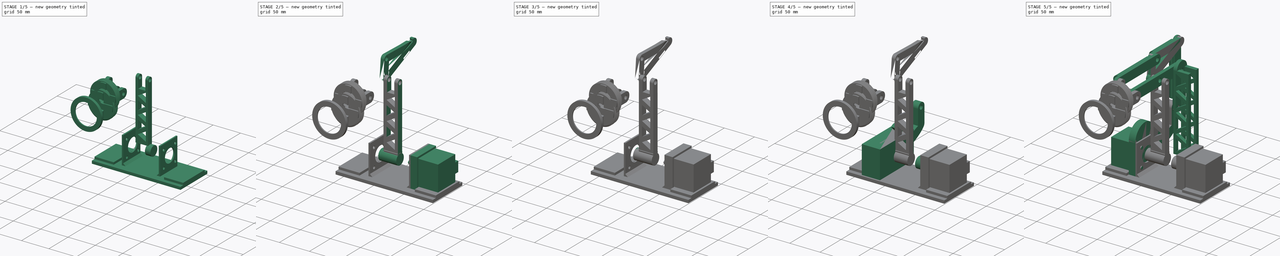
[diagram: build sequence overview — one tinted view per stage of 5, left to right]
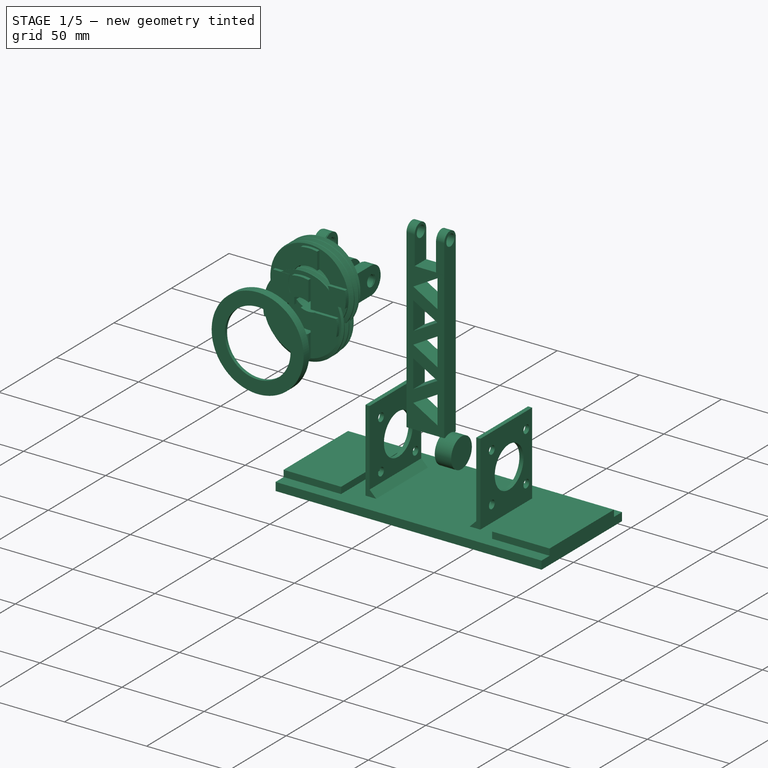
[diagram: stage 1 of 5 — iso view after this stage's code; geometry added in this stage tinted green]
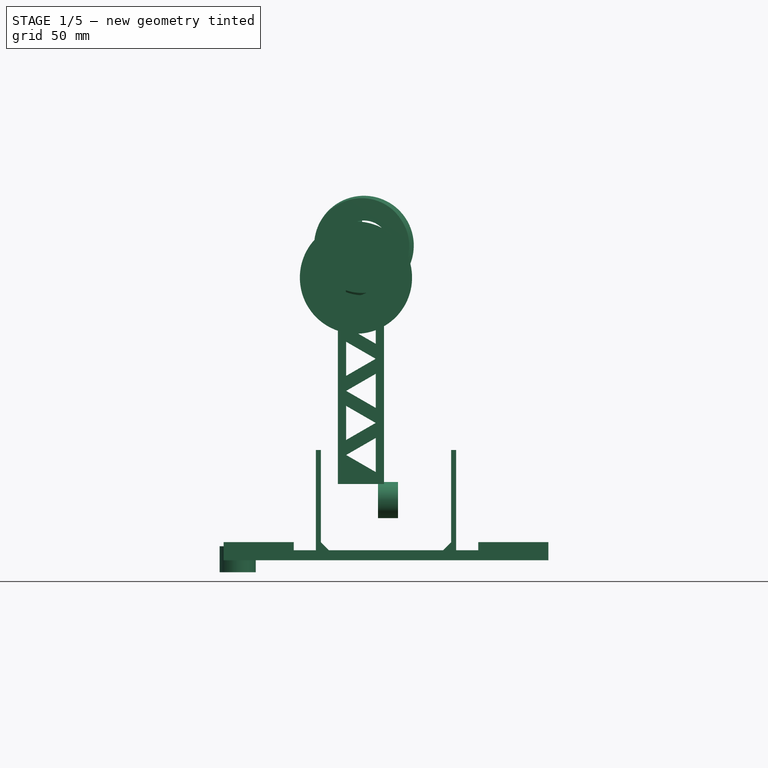
[diagram: stage 1 of 5 — front view after this stage's code; geometry added in this stage tinted green]
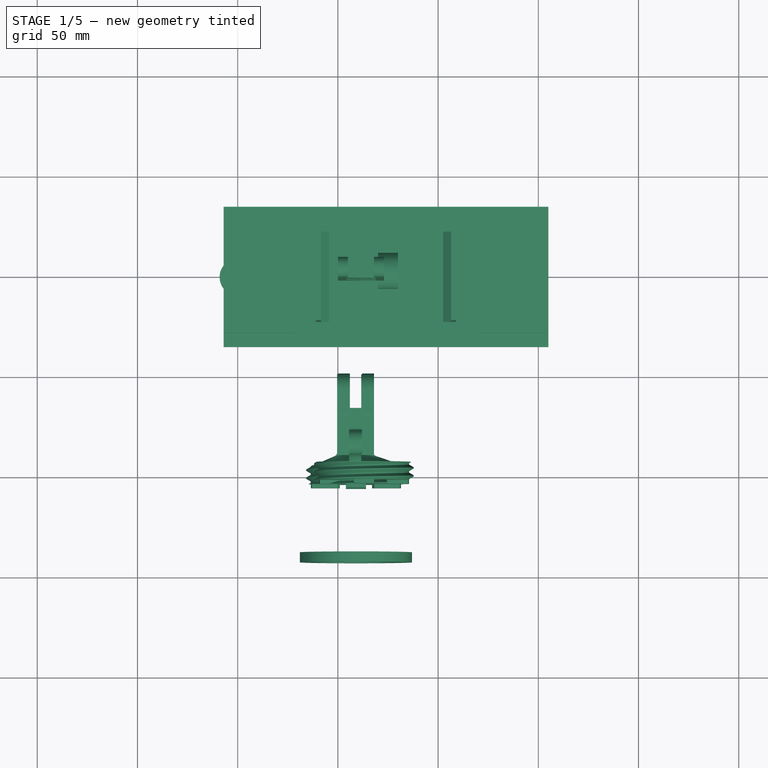
[diagram: stage 1 of 5 — top view after this stage's code; geometry added in this stage tinted green]
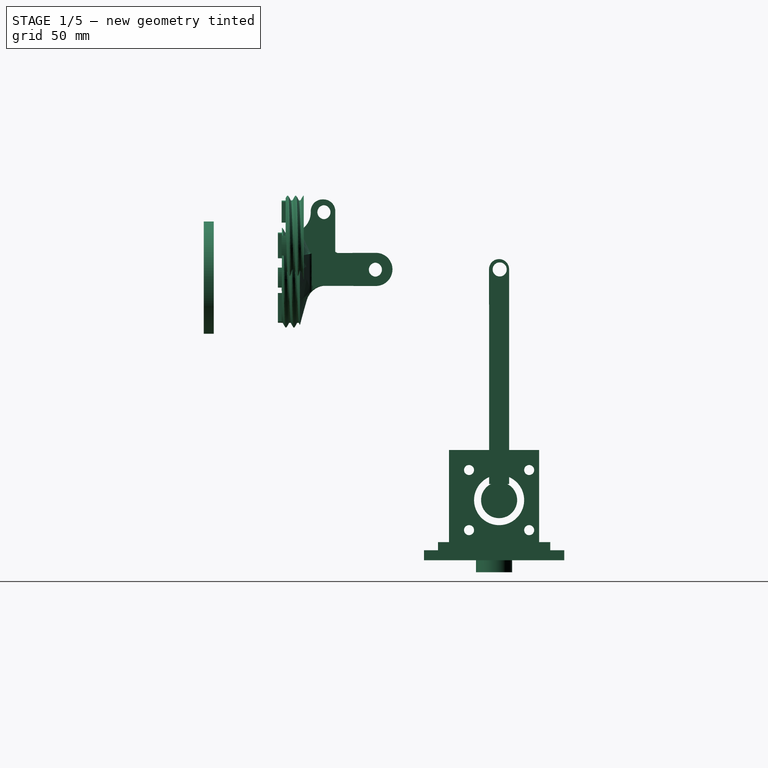
[diagram: stage 1 of 5 — right view after this stage's code; geometry added in this stage tinted green]
FCSTD DOCUMENT  (FreeCAD 0.19R24291 (Git))
Label: my_arm2
License: All rights reserved
LicenseURL: http://en.wikipedia.org/wiki/All_rights_reserved
objects: Part::Extrusion×85, Part::MultiFuse×59, Part::Feature×50, Part::Cut×41, Sketcher::SketchObject×34, App::Link×21, Part::Box×20, Part::Cylinder×17, PartDesign::FeatureBase×12, PartDesign::Pad×6, Part::Fillet×2, Part::Chamfer×2, Part::Compound2×2
note: 334 computed .brp shape members not serialized (recipe doc carries the construction recipe); baked Part::Feature solids carry a one-line shape summary decoded from their .brp

FEATURE [Sketcher::SketchObject] Sketch039
  FullyConstrained = false
  Placement = pos=(0,0,0) rot=(0.57735,-0.57735,-0.57735;2.0944rad)
  sketch-geometry (5):
    g0: ArcOfCircle CenterX=-2.51171 CenterY=145.254 CenterZ=0 NormalX=0 NormalY=0 NormalZ=1 AngleXU=0 Radius=5 StartAngle=5e-16 EndAngle=3.14159
    g1: ArcOfCircle CenterX=-2.51171 CenterY=127.933 CenterZ=0 NormalX=0 NormalY=0 NormalZ=1 AngleXU=0 Radius=5 StartAngle=3.14159 EndAngle=6.28319
    g2: LineSegment StartX=-7.51171 StartY=145.254 StartZ=0 EndX=-7.51171 EndY=127.933 EndZ=0
    g3: LineSegment StartX=2.48829 StartY=145.254 StartZ=0 EndX=2.48829 EndY=127.933 EndZ=0
    g4: Circle CenterX=-2.82037 CenterY=145.089 CenterZ=0 NormalX=0 NormalY=0 NormalZ=1 AngleXU=0 Radius=3.5
  constraints (9):
    c: Tangent(g0,g3) = 1.5708
    c: Tangent(g0,g2) = -1.5708
    c: Tangent(g2,g1) = -1.5708
    c: Tangent(g3,g1) = 1.5708
    c: Vertical(g2)
    c: Equal(g0,g1)
    c: Radius(g4) = 3.5
    c: DistanceX(g1,g1) = 10
    c: Distance(g4,g0) = 0.35
FEATURE [Part::Extrusion] Extrude058  label="union centro_arriba"
  Base = -> Sketch039
  Dir = (-1,0,0)
  DirMode = 2
  FaceMakerClass = Part::FaceMakerBullseye
  LengthFwd = 5
  LengthRev = 0
  Placement = pos=(55,-0.03,0) rot=(0,0,1;0rad)
  Solid = true
  Symmetric = false
FEATURE [Part::Box] Box013  label="soporte motor"
  AttacherType = Attacher::AttachEngine3D
  Height = 4
  Length = 35
  Placement = pos=(0,-28,5) rot=(0,0,1;0rad)
  Width = 56
FEATURE [Part::Box] Box002  label="Plancha abajo"
  AttacherType = Attacher::AttachEngine3D
  Height = 5
  Length = 162
  Placement = pos=(0,-35,0) rot=(0,0,1;0rad)
  Width = 70
FEATURE [App::Link] Link011  label="soporte motor001"
  LinkPlacement = pos=(127,-28,5) rot=(0,0,1;0rad)
  LinkedObject = -> Box013
  Placement = pos=(127,-28,5) rot=(0,0,1;0rad)
FEATURE [Part::MultiFuse] Fusion008  label="Base"
  Placement = pos=(-7,0,0) rot=(0,0,1;0rad)
  Refine = true
  Shapes = -> [Link011,Box013,Box002]
FEATURE [Part::Box] Box022  label="Carcasa Motor003"
  AttacherType = Attacher::AttachEngine3D
  Height = 2.5
  Length = 45
  Placement = pos=(0,0,40) rot=(0,0,1;0rad)
  Width = 50
FEATURE [App::Link] Link023  label="tonillo motor016"
  LinkPlacement = pos=(40,40,38) rot=(0,0,1;0rad)
  LinkedObject = -> Cylinder034
  Placement = pos=(40,40,38) rot=(0,0,1;0rad)
FEATURE [App::Link] Link024  label="tonillo motor017"
  LinkPlacement = pos=(40,10,38) rot=(0,0,1;0rad)
  LinkedObject = -> Cylinder034
  Placement = pos=(40,10,38) rot=(0,0,1;0rad)
FEATURE [App::Link] Link025  label="tonillo motor018"
  LinkPlacement = pos=(10,40,38) rot=(0,0,1;0rad)
  LinkedObject = -> Cylinder034
  Placement = pos=(10,40,38) rot=(0,0,1;0rad)
FEATURE [Part::Cylinder] Cylinder034  label="tonillo motor019"
  Angle = 360
  AttacherType = Attacher::AttachEngine3D
  Height = 8
  Placement = pos=(10,10,38) rot=(0,0,1;0rad)
  Radius = 2.5
FEATURE [Part::Cut] Cut039
  Base = -> Box022
  Refine = true
  Tool = -> Link023
FEATURE [Part::Cut] Cut040
  Base = -> Cut039
  Refine = true
  Tool = -> Link024
FEATURE [Part::Cut] Cut041
  Base = -> Cut040
  Refine = true
  Tool = -> Link025
FEATURE [Part::Cut] Cut042
  Base = -> Cut041
  Placement = pos=(1e-15,-22.5,5) rot=(0.57735,0.57735,0.57735;2.0944rad)
  Refine = true
  Tool = -> Cylinder034
FEATURE [Part::Cylinder] Cylinder035  label="Hueco rotor001"
  Angle = 360
  AttacherType = Attacher::AttachEngine3D
  Height = 25
  Placement = pos=(25,2.5,30) rot=(0,1,0;1.5708rad)
  Radius = 12.5
FEATURE [Part::Cut] Cut043  label="union base motor"
  Base = -> Cut042
  Placement = pos=(-1,0,0) rot=(0,0,1;0rad)
  Refine = true
  Tool = -> Cylinder035
FEATURE [App::Link] Link  label="union base motor001"
  LinkPlacement = pos=(66.5,-7.86781e-06,0) rot=(0,0,1;0rad)
  LinkedObject = -> Cut043
  Placement = pos=(66.5,-7.86781e-06,0) rot=(0,0,1;0rad)
FEATURE [Part::MultiFuse] Fusion063  label="Base completa"
  Refine = true
  Shapes = -> [Link,Cut043,Fusion008]
FEATURE [Part::Feature] Face037
  shape: bbox 15.96 x 13.57 x 2e-07 mm, 1 faces, 0 solids (baked)
FEATURE [Part::Feature] Face038
  shape: bbox 21.96 x 19.88 x 2e-07 mm, 1 faces, 0 solids (baked)
FEATURE [Part::Feature] Face039
  shape: bbox 25.74 x 23.3 x 2e-07 mm, 1 faces, 0 solids (baked)
FEATURE [Part::Feature] Face040
  shape: bbox 30.39 x 27.95 x 2e-07 mm, 1 faces, 0 solids (baked)
FEATURE [Part::Feature] Face041
  shape: bbox 4.4 x 12.1 x 2e-07 mm, 1 faces, 0 solids (baked)
FEATURE [Part::Extrusion] Extrude087
  Base = -> Face037
  Dir = (0,0,1)
  DirMode = 0
  FaceMakerClass = Part::FaceMakerBullseye
  LengthFwd = 5
  LengthRev = 0
  Solid = false
  Symmetric = false
FEATURE [Part::Extrusion] Extrude088
  Base = -> Face038
  Dir = (0,0,1)
  DirMode = 0
  FaceMakerClass = Part::FaceMakerBullseye
  LengthFwd = 5
  LengthRev = 0
  Solid = false
  Symmetric = false
FEATURE [Part::Extrusion] Extrude089
  Base = -> Face039
  Dir = (0,0,1)
  DirMode = 0
  FaceMakerClass = Part::FaceMakerBullseye
  LengthFwd = 5
  LengthRev = 0
  Solid = false
  Symmetric = false
FEATURE [Part::Extrusion] Extrude090
  Base = -> Face041
  Dir = (0,0,1)
  DirMode = 0
  FaceMakerClass = Part::FaceMakerBullseye
  LengthFwd = 5
  LengthRev = 0
  Solid = false
  Symmetric = false
FEATURE [Part::Extrusion] Extrude091
  Base = -> Face040
  Dir = (0,0,1)
  DirMode = 0
  FaceMakerClass = Part::FaceMakerBullseye
  LengthFwd = 5
  LengthRev = 0
  Solid = false
  Symmetric = false
FEATURE [Part::Cut] Cut044
  Base = -> Extrude088
  Tool = -> Extrude087
FEATURE [Part::Cut] Cut045
  Base = -> Cut044
  Tool = -> Extrude090
FEATURE [Part::Cut] Cut046
  Base = -> Extrude091
  Tool = -> Extrude089
FEATURE [Sketcher::SketchObject] Sketch047
  FullyConstrained = false
  sketch-geometry (4):
    g0: ArcOfCircle CenterX=3e-16 CenterY=0 CenterZ=0 NormalX=0 NormalY=0 NormalZ=1 AngleXU=0 Radius=8.30611 StartAngle=4.22441 EndAngle=5.20037
    g1: ArcOfCircle CenterX=3e-16 CenterY=0 CenterZ=0 NormalX=0 NormalY=0 NormalZ=1 AngleXU=0 Radius=5.37276 StartAngle=4.1609 EndAngle=5.26388
    g2: LineSegment StartX=-2.81509 StartY=-4.57622 StartZ=0 EndX=-3.89424 EndY=-7.33664 EndZ=0
    g3: LineSegment StartX=3.89424 StartY=-7.33664 StartZ=0 EndX=2.81509 EndY=-4.57622 EndZ=0
  constraints (8):
    c: Coincident(g0,g-1)
    c: Symmetric(g0,g0,g-2)
    c: Coincident(g1,g0)
    c: Symmetric(g1,g1,g-2)
    c: Coincident(g2,g1)
    c: Coincident(g2,g0)
    c: Coincident(g3,g0)
    c: Coincident(g3,g1)
FEATURE [Part::Extrusion] Extrude092
  Base = -> Sketch047
  Dir = (0,0,1)
  DirMode = 0
  FaceMakerClass = Part::FaceMakerBullseye
  LengthFwd = 5
  LengthRev = 0
  Solid = true
  Symmetric = false
FEATURE [Part::MultiFuse] Fusion064
  Shapes = -> [Cut046,Extrude092]
FEATURE [Part::MultiFuse] Fusion065
  Shapes = -> [Cut046,Extrude092,Fusion064,Cut045]
FEATURE [PartDesign::FeatureBase] BaseFeature009
  BaseFeature = -> Fusion065
FEATURE [Part::Extrusion] Extrude093
  Base = -> Face040
  Dir = (0,0,1)
  DirMode = 0
  FaceMakerClass = Part::FaceMakerBullseye
  LengthFwd = 1
  LengthRev = 0
  Solid = false
  Symmetric = false
FEATURE [Part::MultiFuse] Fusion066
  Shapes = -> [Extrude093,Fusion065]
FEATURE [Part::Feature] Face042
  shape: bbox 4.4 x 12.1 x 2e-07 mm, 1 faces, 0 solids (baked)
FEATURE [Part::Feature] Face043
  shape: bbox 21.96 x 19.88 x 2e-07 mm, 1 faces, 0 solids (baked)
FEATURE [Sketcher::SketchObject] Sketch050
  FullyConstrained = false
  sketch-geometry (4):
    g0: ArcOfCircle CenterX=3e-16 CenterY=0 CenterZ=0 NormalX=0 NormalY=0 NormalZ=1 AngleXU=0 Radius=8.30611 StartAngle=4.22441 EndAngle=5.20037
    g1: ArcOfCircle CenterX=3e-16 CenterY=0 CenterZ=0 NormalX=0 NormalY=0 NormalZ=1 AngleXU=0 Radius=5.37276 StartAngle=4.1609 EndAngle=5.26388
    g2: LineSegment StartX=-2.81509 StartY=-4.57622 StartZ=0 EndX=-3.89424 EndY=-7.33664 EndZ=0
    g3: LineSegment StartX=3.89424 StartY=-7.33664 StartZ=0 EndX=2.81509 EndY=-4.57622 EndZ=0
  constraints (8):
    c: Coincident(g0,g-1)
    c: Symmetric(g0,g0,g-2)
    c: Coincident(g1,g0)
    c: Symmetric(g1,g1,g-2)
    c: Coincident(g2,g1)
    c: Coincident(g2,g0)
    c: Coincident(g3,g0)
    c: Coincident(g3,g1)
FEATURE [Part::Extrusion] Extrude098
  Base = -> Face043
  Dir = (0,0,1)
  DirMode = 0
  FaceMakerClass = Part::FaceMakerBullseye
  LengthFwd = 5
  LengthRev = 0
  Solid = false
  Symmetric = false
FEATURE [Part::Extrusion] Extrude099
  Base = -> Face042
  Dir = (0,0,1)
  DirMode = 0
  FaceMakerClass = Part::FaceMakerBullseye
  LengthFwd = 5
  LengthRev = 0
  Solid = false
  Symmetric = false
FEATURE [Part::Feature] Face045
  shape: bbox 15.96 x 13.57 x 2e-07 mm, 1 faces, 0 solids (baked)
FEATURE [Part::Extrusion] Extrude096
  Base = -> Face045
  Dir = (0,0,1)
  DirMode = 0
  FaceMakerClass = Part::FaceMakerBullseye
  LengthFwd = 5
  LengthRev = 0
  Solid = false
  Symmetric = false
FEATURE [Part::Cut] Cut050
  Base = -> Extrude098
  Tool = -> Extrude096
FEATURE [Part::Feature] Face047
  shape: bbox 30.39 x 27.95 x 2e-07 mm, 1 faces, 0 solids (baked)
FEATURE [Part::Extrusion] Extrude103
  Base = -> Face047
  Dir = (0,0,1)
  DirMode = 0
  FaceMakerClass = Part::FaceMakerBullseye
  LengthFwd = 6
  LengthRev = 0
  Solid = false
  Symmetric = false
FEATURE [PartDesign::Pad] Pad006
  BaseFeature = -> BaseFeature009
  Direction = (1,1,1)
  Length = 2
  Length2 = 100
  Profile = -> BaseFeature009 [Face14,Face19,Face16,Face21,Face20]
  Type = 0
FEATURE [Sketcher::SketchObject] Sketch048
  ExternalGeometry = -> [Pad006]
  FullyConstrained = true
  Placement = pos=(0,0,0) rot=(1,0,0;1.5708rad)
  sketch-geometry (1):
    g0: Circle CenterX=0 CenterY=4 CenterZ=0 NormalX=0 NormalY=0 NormalZ=1 AngleXU=0 Radius=2
  constraints (3):
    c: PointOnObject(g0,g-2)
    c: Radius(g0) = 2
    c: Distance(g0,g-3) = 3
FEATURE [Part::MultiFuse] Fusion067
  Shapes = -> [Pad006,Fusion066]
FEATURE [Part::Extrusion] Extrude094
  Base = -> Sketch048
  Dir = (0,-1,2e-16)
  DirMode = 2
  FaceMakerClass = Part::FaceMakerBullseye
  LengthFwd = -14
  LengthRev = 0
  Solid = true
  Symmetric = false
FEATURE [Part::Cut] Cut047
  Base = -> Fusion067
  Tool = -> Extrude094
FEATURE [PartDesign::FeatureBase] BaseFeature010
  BaseFeature = -> Cut047
FEATURE [Part::MultiFuse] Fusion072
  Shapes = -> [BaseFeature010,Extrude103]
FEATURE [Part::Cylinder] Cylinder038
  Angle = 360
  AttacherType = Attacher::AttachEngine3D
  Height = 10
  Placement = pos=(70,2.5,30) rot=(0,1,0;1.5708rad)
  Radius = 9
FEATURE [Part::Extrusion] Extrude028  label="brazo central triangulos001"
  Base = -> Sketch029
  Dir = (0,-1,2e-16)
  DirMode = 2
  FaceMakerClass = Part::FaceMakerBullseye
  LengthFwd = 10
  LengthRev = 0
  Placement = pos=(-6.55,7.5,-5.11) rot=(0,0,1;0rad)
  Solid = true
  Symmetric = false
FEATURE [Part::MultiFuse] Fusion  label="Brazo delantero"
  Refine = true
  Shapes = -> [Extrude028,Extrude058,Link022]
FEATURE [Part::Chamfer] Chamfer
  Base = -> Fusion063
  Edges = 1 edges r=4: [Edge27]
FEATURE [Part::Chamfer] Chamfer001
  Base = -> Chamfer
  Edges = 1 edges r=4: [Edge21]
FEATURE [Part::Feature] Solid002
  Placement = pos=(-5,0,0) rot=(0,0,1;0rad)
  shape: bbox 51.46 x 51.46 x 12.32 mm, 28 faces (baked)
FEATURE [Part::Compound2] Compound  label="no me convence v3"
  Links = -> [Solid002]
  Placement = pos=(-82,-105,157) rot=(-1,0,0;4.71239rad)
FEATURE [Sketcher::SketchObject] Sketch052
  FullyConstrained = false
  Placement = pos=(0,0,0) rot=(0.57735,-0.57735,-0.57735;2.0944rad)
  sketch-geometry (5):
    g0: ArcOfCircle CenterX=58.9732 CenterY=145.104 CenterZ=0 NormalX=0 NormalY=0 NormalZ=1 AngleXU=0 Radius=8.26292 StartAngle=1.5708 EndAngle=4.71239
    g1: ArcOfCircle CenterX=69.3332 CenterY=145.104 CenterZ=0 NormalX=0 NormalY=0 NormalZ=1 AngleXU=0 Radius=8.26292 StartAngle=4.71239 EndAngle=7.85398
    g2: LineSegment StartX=58.9732 StartY=136.841 StartZ=0 EndX=69.3332 EndY=136.841 EndZ=0
    g3: LineSegment StartX=58.9732 StartY=153.367 StartZ=0 EndX=69.3332 EndY=153.367 EndZ=0
    g4: Circle CenterX=58.9848 CenterY=144.975 CenterZ=0 NormalX=0 NormalY=0 NormalZ=1 AngleXU=0 Radius=3.5
  constraints (9):
    c: Tangent(g0,g3) = 1.5708
    c: Tangent(g0,g2) = -1.5708
    c: Tangent(g2,g1) = -1.5708
    c: Tangent(g3,g1) = 1.5708
    c: Horizontal(g2)
    c: Equal(g0,g1)
    c: Radius(g4) = 3.5
    c: Distance(g0,g4) = 0.13
    c: DistanceX(g3,g3) = 10.36
FEATURE [Part::Extrusion] Extrude107  label="Union codo"
  Base = -> Sketch052
  Dir = (-1,0,0)
  DirMode = 2
  FaceMakerClass = Part::FaceMakerBullseye
  LengthFwd = 6
  LengthRev = 0
  Placement = pos=(56,0,0) rot=(0,0,1;0rad)
  Solid = true
  Symmetric = false
FEATURE [App::Link] Link027  label="Union codo1"
  LinkPlacement = pos=(68,-8.10623e-06,0) rot=(0,0,1;0rad)
  LinkedObject = -> Extrude107
  Placement = pos=(68,-8.10623e-06,0) rot=(0,0,1;0rad)
FEATURE [Part::Box] Box  label="Cuadrado"
  AttacherType = Attacher::AttachEngine3D
  Height = 16
  Length = 18
  Placement = pos=(50,-91,137) rot=(0,0,1;0rad)
  Width = 23
FEATURE [Sketcher::SketchObject] Sketch053
  FullyConstrained = false
  Placement = pos=(0,0,0) rot=(0.57735,-0.57735,-0.57735;2.0944rad)
  sketch-geometry (8):
    g0: ArcOfCircle CenterX=85.1181 CenterY=174.147 CenterZ=0 NormalX=0 NormalY=0 NormalZ=1 AngleXU=0 Radius=5.88 StartAngle=-9e-16 EndAngle=3.14159
    g1: LineSegment StartX=79.2381 StartY=174.147 StartZ=0 EndX=79.2381 EndY=153.287 EndZ=0
    g2: LineSegment StartX=90.9981 StartY=174.147 StartZ=0 EndX=90.9981 EndY=153.287 EndZ=0
    g3: LineSegment StartX=68.1181 StartY=153.287 StartZ=0 EndX=79.2381 EndY=153.287 EndZ=0
    g4: LineSegment StartX=90.9981 StartY=153.287 StartZ=0 EndX=90.9981 EndY=136.917 EndZ=0
    g5: LineSegment StartX=90.9981 StartY=136.917 StartZ=0 EndX=68.1181 EndY=136.917 EndZ=0
    g6: LineSegment StartX=68.1181 StartY=136.917 StartZ=0 EndX=68.1181 EndY=153.287 EndZ=0
    g7: Circle CenterX=84.663 CenterY=173.655 CenterZ=0 NormalX=0 NormalY=0 NormalZ=1 AngleXU=0 Radius=3.5
  constraints (18):
    c: Tangent(g0,g2) = 1.5708
    c: Tangent(g0,g1) = -1.5708
    c: Vertical(g1)
    c: Coincident(g4,g5)
    c: Coincident(g5,g6)
    c: Coincident(g6,g3)
    c: Horizontal(g3)
    c: Horizontal(g5)
    c: Vertical(g4)
    c: Vertical(g6)
    c: DistanceY(g6,g6) = 16.37
    c: DistanceX(g3,g4) = 22.88
    c: Radius(g7) = 3.5
    c: Distance(g0,g7) = 0.67
    c: DistanceX(g0,g0) = 11.76
    c: DistanceY(g4,g0) = 20.86
    c: Coincident(g2,g4)
    c: Coincident(g1,g3)
FEATURE [Part::Extrusion] Extrude108  label="Union palo 3"
  Base = -> Sketch053
  Dir = (-1,0,0)
  DirMode = 2
  FaceMakerClass = Part::FaceMakerBullseye
  LengthFwd = 6
  LengthRev = 0
  Placement = pos=(62,0,0) rot=(0,0,1;0rad)
  Solid = true
  Symmetric = false
FEATURE [Part::MultiFuse] Fusion077  label="Base union pinza"
  Refine = true
  Shapes = -> [Extrude108,Box,Link027,Extrude107]
FEATURE [Part::Feature] Solid
  shape: bbox 56.69 x 51.48 x 64.86 mm, 95 faces (baked)
FEATURE [Part::Feature] Solid001
  shape: bbox 6.292 x 56 x 56 mm, 10 faces (baked)
FEATURE [Part::Compound2] Compound001  label="no me convence v5"
  Links = -> [Solid,Solid001]
  Placement = pos=(59.0033,44.1367,112) rot=(0,0,1;-1.5708rad)
FEATURE [Part::Feature] Solid003  label="enganche v3"
  Placement = pos=(-6,0,0) rot=(0,0,1;0rad)
  shape: bbox 30 x 18 x 128.8 mm, 63 faces (baked)
FEATURE [Part::Feature] Solid004  label="my_arm2-2 v1"
  Placement = pos=(3,0,0) rot=(0,0,1;0rad)
  shape: bbox 13.12 x 98.61 x 74.4 mm, 38 faces (baked)
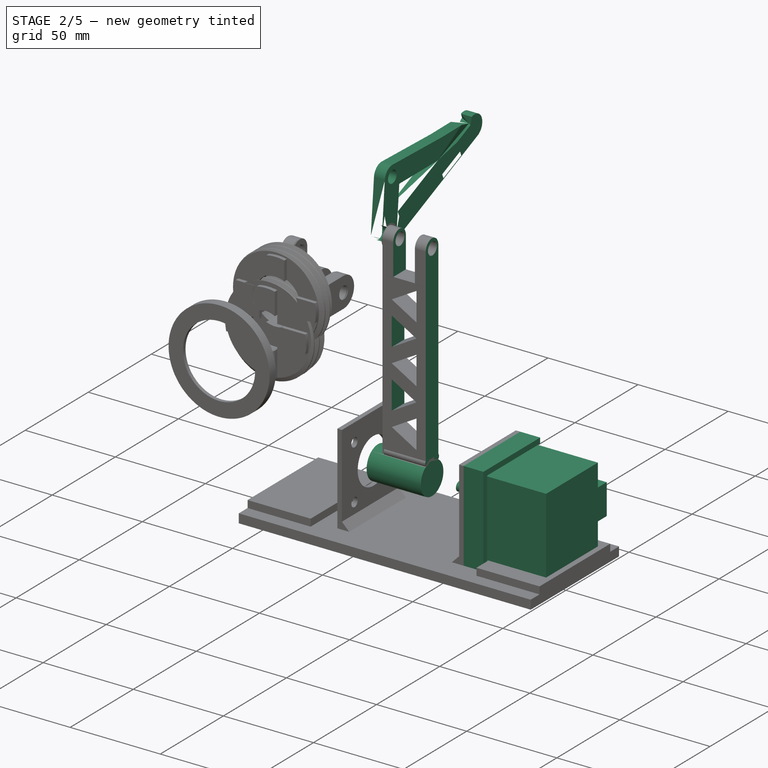
[diagram: stage 2 of 5 — iso view after this stage's code; geometry added in this stage tinted green]
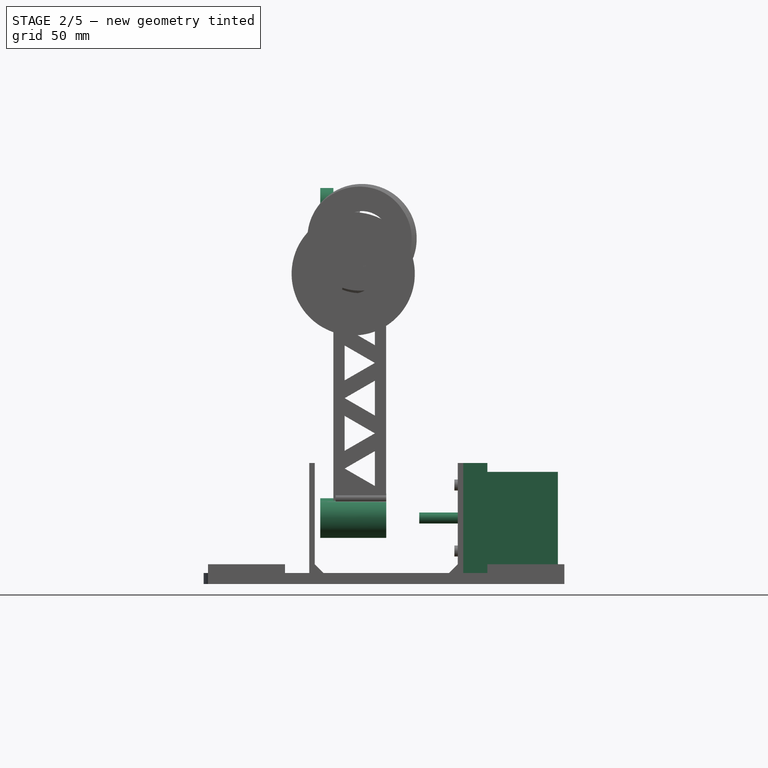
[diagram: stage 2 of 5 — front view after this stage's code; geometry added in this stage tinted green]
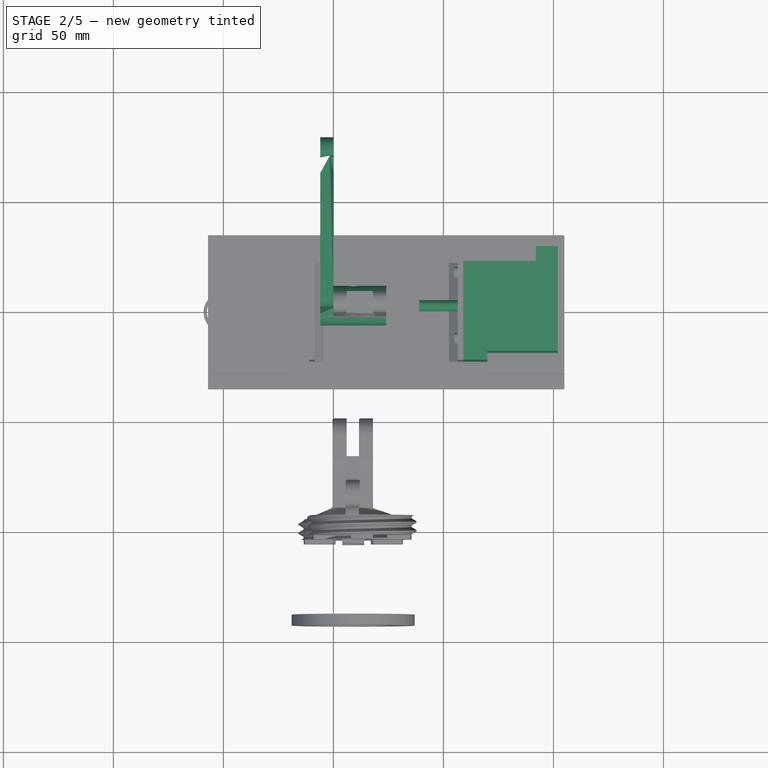
[diagram: stage 2 of 5 — top view after this stage's code; geometry added in this stage tinted green]
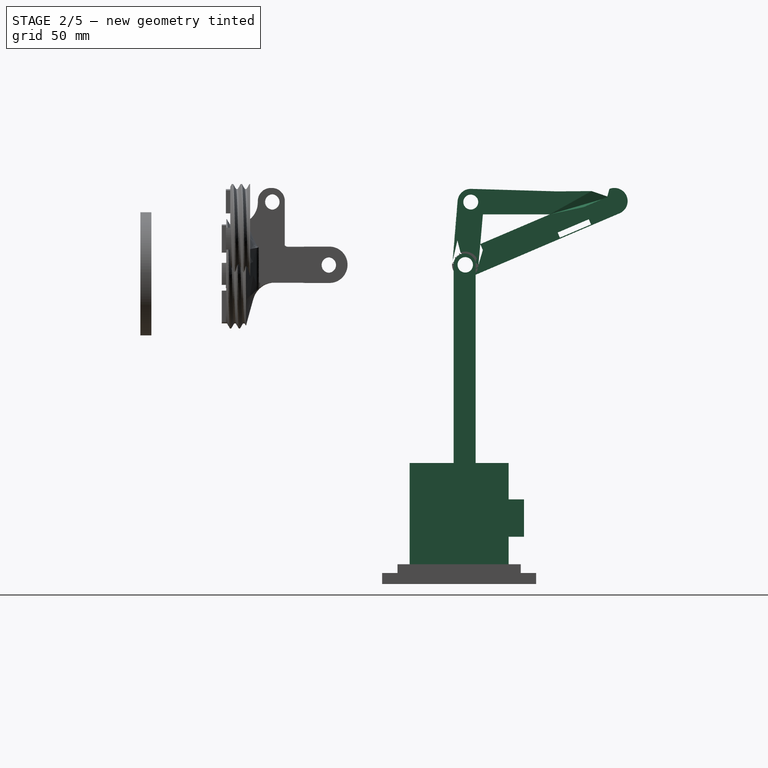
[diagram: stage 2 of 5 — right view after this stage's code; geometry added in this stage tinted green]
FEATURE [Part::Box] Box008  label="alimentacion002"
  AttacherType = Attacher::AttachEngine3D
  Height = 10
  Length = 7
  Placement = pos=(45,16.5,0) rot=(0,0,1;0rad)
  Width = 17
FEATURE [Part::Box] Box009  label="base motor001"
  AttacherType = Attacher::AttachEngine3D
  Height = 40
  Length = 41
  Placement = pos=(4,4,0) rot=(0,0,1;0rad)
  Width = 42
FEATURE [Part::Cylinder] Cylinder004  label="Rotor002"
  Angle = 360
  AttacherType = Attacher::AttachEngine3D
  Height = 25
  Placement = pos=(25,25,38) rot=(0,0,1;0rad)
  Radius = 2.5
FEATURE [App::Link] Link007  label="tonillo motor008"
  LinkPlacement = pos=(10,40,43) rot=(0,0,1;0rad)
  LinkedObject = -> Cylinder005
  Placement = pos=(10,40,43) rot=(0,0,1;0rad)
FEATURE [Part::Box] Box010  label="Carcasa Motor001"
  AttacherType = Attacher::AttachEngine3D
  Height = 3
  Length = 45
  Placement = pos=(0,0,40) rot=(0,0,1;0rad)
  Width = 50
FEATURE [Part::Cylinder] Cylinder005  label="tonillo motor009"
  Angle = 360
  AttacherType = Attacher::AttachEngine3D
  Height = 4
  Placement = pos=(10,10,43) rot=(0,0,1;0rad)
  Radius = 2.5
FEATURE [Part::Box] Box011  label="lateral frente001"
  AttacherType = Attacher::AttachEngine3D
  Height = 8
  Length = 3
  Placement = pos=(0,0,32) rot=(0,0,1;0rad)
  Width = 50
FEATURE [Part::Box] Box012  label="lateral izq001"
  AttacherType = Attacher::AttachEngine3D
  Height = 8
  Length = 45
  Placement = pos=(0,0,32) rot=(0,0,1;0rad)
  Width = 3
FEATURE [Part::MultiFuse] Fusion007  label="motor001"
  Refine = true
  Shapes = -> [Cylinder004,Box009,Box008]
FEATURE [App::Link] Link008  label="lateral der001"
  LinkPlacement = pos=(0,47,32) rot=(0,0,1;0rad)
  LinkedObject = -> Box012
  Placement = pos=(0,47,32) rot=(0,0,1;0rad)
FEATURE [Part::MultiFuse] Fusion006  label="Carcasa completa001"
  Refine = true
  Shapes = -> [Box010,Box012,Link008,Box011]
FEATURE [Part::Extrusion] Extrude031  label="Extrude002"
  Base = -> Face002
  Dir = (0,0,1)
  DirMode = 0
  FaceMakerClass = Part::FaceMakerBullseye
  LengthFwd = 5
  LengthRev = 0
  Solid = false
  Symmetric = false
FEATURE [Part::Extrusion] Extrude033  label="Extrude004"
  Base = -> Face003
  Dir = (0,0,1)
  DirMode = 0
  FaceMakerClass = Part::FaceMakerBullseye
  LengthFwd = 5
  LengthRev = 0
  Solid = false
  Symmetric = false
FEATURE [Sketcher::SketchObject] Sketch031  label="Sketch001"
  FullyConstrained = false
  sketch-geometry (4):
    g0: ArcOfCircle CenterX=3e-16 CenterY=0 CenterZ=0 NormalX=0 NormalY=0 NormalZ=1 AngleXU=0 Radius=8.30611 StartAngle=4.22441 EndAngle=5.20037
    g1: ArcOfCircle CenterX=3e-16 CenterY=0 CenterZ=0 NormalX=0 NormalY=0 NormalZ=1 AngleXU=0 Radius=5.37276 StartAngle=4.1609 EndAngle=5.26388
    g2: LineSegment StartX=-2.81509 StartY=-4.57622 StartZ=0 EndX=-3.89424 EndY=-7.33664 EndZ=0
    g3: LineSegment StartX=3.89424 StartY=-7.33664 StartZ=0 EndX=2.81509 EndY=-4.57622 EndZ=0
  constraints (8):
    c: Coincident(g0,g-1)
    c: Symmetric(g0,g0,g-2)
    c: Coincident(g1,g0)
    c: Symmetric(g1,g1,g-2)
    c: Coincident(g2,g1)
    c: Coincident(g2,g0)
    c: Coincident(g3,g0)
    c: Coincident(g3,g1)
FEATURE [Part::Extrusion] Extrude034  label="Extrude005"
  Base = -> Sketch031
  Dir = (0,0,1)
  DirMode = 0
  FaceMakerClass = Part::FaceMakerBullseye
  LengthFwd = 5
  LengthRev = 0
  Solid = true
  Symmetric = false
FEATURE [Part::Feature] Face031
  shape: bbox 2e-07 x 91.89 x 49.16 mm, 1 faces, 0 solids (baked)
FEATURE [Part::Feature] Face032
  shape: bbox 2e-07 x 80.85 x 14.06 mm, 1 faces, 0 solids (baked)
FEATURE [Part::Feature] Face033
  shape: bbox 2e-07 x 16.99 x 45.53 mm, 1 faces, 0 solids (baked)
FEATURE [Part::Extrusion] Extrude080
  Base = -> Face031
  Dir = (1,0,0)
  DirMode = 0
  FaceMakerClass = Part::FaceMakerBullseye
  LengthFwd = 6
  LengthRev = 0
  Solid = false
  Symmetric = false
FEATURE [Part::Extrusion] Extrude081
  Base = -> Face032
  Dir = (1,0,0)
  DirMode = 0
  FaceMakerClass = Part::FaceMakerBullseye
  LengthFwd = 6
  LengthRev = 0
  Solid = false
  Symmetric = false
FEATURE [Part::Extrusion] Extrude082
  Base = -> Face033
  Dir = (1,0,0)
  DirMode = 0
  FaceMakerClass = Part::FaceMakerBullseye
  LengthFwd = 6
  LengthRev = 0
  Solid = false
  Symmetric = false
FEATURE [Part::Feature] Face034
  shape: bbox 2e-07 x 10.31 x 10.32 mm, 1 faces, 0 solids (baked)
FEATURE [Part::Feature] Face035
  shape: bbox 2e-07 x 7.919 x 7.503 mm, 1 faces, 0 solids (baked)
FEATURE [Part::Feature] Face036
  shape: bbox 2e-07 x 10.33 x 7.702 mm, 1 faces, 0 solids (baked)
FEATURE [Part::Extrusion] Extrude083
  Base = -> Face036
  Dir = (1,0,0)
  DirMode = 0
  FaceMakerClass = Part::FaceMakerBullseye
  LengthFwd = 10
  LengthRev = 0
  Solid = false
  Symmetric = false
FEATURE [Part::Extrusion] Extrude084
  Base = -> Face035
  Dir = (1,0,0)
  DirMode = 0
  FaceMakerClass = Part::FaceMakerBullseye
  LengthFwd = 10
  LengthRev = 0
  Solid = false
  Symmetric = false
FEATURE [Part::Extrusion] Extrude085
  Base = -> Face034
  Dir = (1,0,0)
  DirMode = 0
  FaceMakerClass = Part::FaceMakerBullseye
  LengthFwd = 10
  LengthRev = 0
  Solid = false
  Symmetric = false
FEATURE [Part::MultiFuse] Fusion061
  Refine = true
  Shapes = -> [Extrude085,Extrude084,Extrude083]
FEATURE [Part::Cut] Cut018
  Base = -> Extrude033
  Tool = -> Extrude031
FEATURE [Part::MultiFuse] Fusion005  label="Motor completo001"
  Placement = pos=(152,-22.5,55) rot=(0.57735,0.57735,-0.57735;4.18879rad)
  Refine = true
  Shapes = -> [Fusion006,Fusion007,Link009,Link010,Link007,Cylinder005]
FEATURE [Part::MultiFuse] Fusion062
  Refine = true
  Shapes = -> [Extrude082,Extrude081,Extrude080]
FEATURE [Part::Cut] Cut038  label="TriangleFinal"
  Base = -> Fusion062
  Placement = pos=(50,0,0) rot=(0,0,1;0rad)
  Refine = true
  Tool = -> Fusion061
FEATURE [Sketcher::SketchObject] Sketch046
  FullyConstrained = false
  Placement = pos=(0,0,0) rot=(1,0,0;1.5708rad)
  sketch-geometry (19):
    g0: LineSegment StartX=56.5408 StartY=133.111 StartZ=0 EndX=56.5408 EndY=43.1108 EndZ=0
    g1: LineSegment StartX=79.5408 StartY=133.111 StartZ=0 EndX=79.5408 EndY=43.1108 EndZ=0
    g2: LineSegment StartX=56.5408 StartY=43.1108 StartZ=0 EndX=79.5408 EndY=43.1108 EndZ=0
    g3: LineSegment StartX=56.5408 StartY=133.111 StartZ=0 EndX=79.5408 EndY=133.111 EndZ=0
    g4: LineSegment StartX=60.6808 StartY=57.6108 StartZ=0 EndX=75.4033 EndY=66.1108 EndZ=0
    g5: LineSegment StartX=60.6808 StartY=57.6108 StartZ=0 EndX=75.4033 EndY=49.1108 EndZ=0
    g6: LineSegment StartX=75.4033 StartY=66.1108 StartZ=0 EndX=75.4033 EndY=49.1108 EndZ=0
    g7: LineSegment StartX=60.6784 StartY=65.1108 StartZ=0 EndX=60.6784 EndY=82.1108 EndZ=0
    g8: LineSegment StartX=60.6784 StartY=65.1108 StartZ=0 EndX=75.4008 EndY=73.6108 EndZ=0
    g9: LineSegment StartX=60.6784 StartY=82.1108 StartZ=0 EndX=75.4008 EndY=73.6108 EndZ=0
    g10: LineSegment StartX=60.6808 StartY=89.6108 StartZ=0 EndX=75.4033 EndY=98.1108 EndZ=0
    g11: LineSegment StartX=60.6808 StartY=89.6108 StartZ=0 EndX=75.4033 EndY=81.1108 EndZ=0
    g12: LineSegment StartX=75.4033 StartY=98.1108 StartZ=0 EndX=75.4033 EndY=81.1108 EndZ=0
    g13: LineSegment StartX=60.6784 StartY=97.1108 StartZ=0 EndX=60.6784 EndY=114.111 EndZ=0
    g14: LineSegment StartX=60.6784 StartY=97.1108 StartZ=0 EndX=75.4008 EndY=105.611 EndZ=0
    g15: LineSegment StartX=60.6784 StartY=114.111 StartZ=0 EndX=75.4008 EndY=105.611 EndZ=0
    g16: LineSegment StartX=60.6808 StartY=121.611 StartZ=0 EndX=75.4033 EndY=130.111 EndZ=0
    g17: LineSegment StartX=75.4033 StartY=130.111 StartZ=0 EndX=75.4033 EndY=113.111 EndZ=0
    g18: LineSegment StartX=60.6808 StartY=121.611 StartZ=0 EndX=75.4033 EndY=113.111 EndZ=0
  constraints (55):
    c: Vertical(g0)
    c: Vertical(g1)
    c: Coincident(g2,g0)
    c: Coincident(g2,g1)
    c: Horizontal(g2)
    c: Coincident(g3,g0)
    c: Coincident(g3,g1)
    c: Horizontal(g3)
    c: DistanceX(g3,g3) = 23
    c: DistanceY(g1,g1) = 90
    c: Coincident(g5,g4)
    c: Coincident(g6,g4)
    c: Coincident(g6,g5)
    c: Vertical(g6)
    c: Angle(g5,g4) = 1.0472
    c: Angle(g4,g6) = 1.0472
    c: DistanceY(g6,g6) = 17
    c: Distance(g4,g0) = 4.14
    c: Coincident(g8,g7)
    c: Coincident(g9,g7)
    c: Coincident(g9,g8)
    c: Angle(g8,g7) = 1.0472
    c: Angle(g7,g9) = 1.0472
    c: Vertical(g7)
    c: DistanceY(g7,g7) = 17
    c: Distance(g8,g1) = 4.14
    c: Coincident(g11,g10)
    c: Coincident(g12,g10)
    c: Coincident(g12,g11)
    c: Vertical(g12)
    c: Angle(g11,g10) = 1.0472
    c: Angle(g10,g12) = 1.0472
    c: DistanceY(g12,g12) = 17
    c: Distance(g10,g0) = 4.14
    c: Coincident(g14,g13)
    c: Coincident(g15,g13)
    c: Coincident(g15,g14)
    c: Angle(g14,g13) = 1.0472
    c: Angle(g13,g15) = 1.0472
    c: Vertical(g13)
    c: DistanceY(g13,g13) = 17
    c: Distance(g14,g1) = 4.14
    c: Coincident(g18,g16)
    c: Coincident(g17,g16)
    c: Coincident(g17,g18)
    c: Vertical(g17)
    c: Angle(g18,g16) = 1.0472
    c: Angle(g16,g17) = 1.0472
    c: DistanceY(g17,g17) = 17
    c: Distance(g16,g0) = 4.14
    c: Distance(g5,g2) = 6
    c: DistanceY(g4,g8) = 7.5
    c: DistanceY(g7,g10) = 7.5
    c: DistanceY(g10,g14) = 7.5
    c: DistanceY(g13,g16) = 7.5
FEATURE [Part::Extrusion] Extrude086  label="brazo central triangulos002"
  Base = -> Sketch046
  Dir = (0,-1,2e-16)
  DirMode = 2
  FaceMakerClass = Part::FaceMakerBullseye
  LengthFwd = 10
  LengthRev = 0
  Placement = pos=(0.45,7.5,-5.11) rot=(0,0,1;0rad)
  Solid = true
  Symmetric = false
FEATURE [Part::Feature] Face044
  shape: bbox 25.74 x 23.3 x 2e-07 mm, 1 faces, 0 solids (baked)
FEATURE [Part::Extrusion] Extrude095
  Base = -> Face044
  Dir = (0,0,1)
  DirMode = 0
  FaceMakerClass = Part::FaceMakerBullseye
  LengthFwd = 5
  LengthRev = 0
  Solid = false
  Symmetric = false
FEATURE [Part::Extrusion] Extrude100
  Base = -> Sketch050
  Dir = (0,0,1)
  DirMode = 0
  FaceMakerClass = Part::FaceMakerBullseye
  LengthFwd = 5
  LengthRev = 0
  Solid = true
  Symmetric = false
FEATURE [Part::Feature] Face046
  shape: bbox 30.39 x 27.95 x 2e-07 mm, 1 faces, 0 solids (baked)
FEATURE [Part::Extrusion] Extrude101
  Base = -> Face046
  Dir = (0,0,1)
  DirMode = 0
  FaceMakerClass = Part::FaceMakerBullseye
  LengthFwd = 5
  LengthRev = 0
  Solid = false
  Symmetric = false
FEATURE [Part::Cut] Cut049
  Base = -> Extrude101
  Tool = -> Extrude095
FEATURE [Part::MultiFuse] Fusion071
  Shapes = -> [Cut049,Extrude100]
FEATURE [Part::Extrusion] Extrude102
  Base = -> Face046
  Dir = (0,0,1)
  DirMode = 0
  FaceMakerClass = Part::FaceMakerBullseye
  LengthFwd = 1
  LengthRev = 0
  Solid = false
  Symmetric = false
FEATURE [Part::Cut] Cut051
  Base = -> Cut050
  Tool = -> Extrude099
FEATURE [Part::MultiFuse] Fusion068
  Shapes = -> [Cut049,Extrude100,Fusion071,Cut051]
FEATURE [Part::MultiFuse] Fusion069
  Shapes = -> [Extrude102,Fusion068]
FEATURE [PartDesign::FeatureBase] BaseFeature012
  BaseFeature = -> Fusion068
FEATURE [PartDesign::Pad] Pad005
  BaseFeature = -> BaseFeature012
  Direction = (1,1,1)
  Length = 2
  Length2 = 100
  Profile = -> BaseFeature012 [Face14,Face19,Face16,Face21,Face20]
  Type = 0
FEATURE [Sketcher::SketchObject] Sketch049
  ExternalGeometry = -> [Pad005]
  FullyConstrained = true
  Placement = pos=(0,0,0) rot=(1,0,0;1.5708rad)
  sketch-geometry (1):
    g0: Circle CenterX=0 CenterY=4 CenterZ=0 NormalX=0 NormalY=0 NormalZ=1 AngleXU=0 Radius=2
  constraints (3):
    c: PointOnObject(g0,g-2)
    c: Radius(g0) = 2
    c: Distance(g0,g-3) = 3
FEATURE [Part::MultiFuse] Fusion070
  Shapes = -> [Pad005,Fusion069]
FEATURE [Part::Extrusion] Extrude097
  Base = -> Sketch049
  Dir = (0,-1,3e-16)
  DirMode = 2
  FaceMakerClass = Part::FaceMakerBullseye
  LengthFwd = -14
  LengthRev = 0
  Solid = true
  Symmetric = false
FEATURE [Part::Cut] Cut048
  Base = -> Fusion070
  Placement = pos=(77,2.5,30) rot=(0,-1,0;1.5708rad)
  Tool = -> Extrude097
FEATURE [PartDesign::FeatureBase] BaseFeature011
  BaseFeature = -> Cut048
  Placement = pos=(0,0,-12) rot=(0,1,0;0rad)
FEATURE [Part::Feature] Face048
  shape: bbox 19.84 x 19.63 x 2e-07 mm, 1 faces, 0 solids (baked)
FEATURE [Part::Extrusion] Extrude104
  Base = -> Face048
  Dir = (0,0,1)
  DirMode = 0
  FaceMakerClass = Part::FaceMakerBullseye
  LengthFwd = -18
  LengthRev = 0
  Solid = false
  Symmetric = false
FEATURE [Part::Feature] Face049
  shape: bbox 30.39 x 27.95 x 2e-07 mm, 1 faces, 0 solids (baked)
FEATURE [Part::Extrusion] Extrude105
  Base = -> Face049
  Dir = (0,0,1)
  DirMode = 0
  FaceMakerClass = Part::FaceMakerBullseye
  LengthFwd = -1
  LengthRev = 0
  Solid = false
  Symmetric = false
FEATURE [Part::MultiFuse] Fusion073
  Refine = true
  Shapes = -> [Fusion072,BaseFeature011]
FEATURE [Part::MultiFuse] Fusion074
  Refine = true
  Shapes = -> [Extrude105,Fusion073]
FEATURE [Part::Cut] Cut052
  Base = -> Fusion074
  Placement = pos=(57,2.5,30) rot=(0,-1,0;1.5708rad)
  Refine = true
  Tool = -> Extrude104
FEATURE [Sketcher::SketchObject] Sketch051
  FullyConstrained = false
  Placement = pos=(0,0,0) rot=(0.57735,-0.57735,-0.57735;2.0944rad)
  sketch-geometry (5):
    g0: ArcOfCircle CenterX=-2.51171 CenterY=145.254 CenterZ=0 NormalX=0 NormalY=0 NormalZ=1 AngleXU=0 Radius=5 StartAngle=5e-16 EndAngle=3.14159
    g1: ArcOfCircle CenterX=-2.51171 CenterY=127.933 CenterZ=0 NormalX=0 NormalY=0 NormalZ=1 AngleXU=0 Radius=5 StartAngle=3.14159 EndAngle=6.28319
    g2: LineSegment StartX=-7.51171 StartY=145.254 StartZ=0 EndX=-7.51171 EndY=127.933 EndZ=0
    g3: LineSegment StartX=2.48829 StartY=145.254 StartZ=0 EndX=2.48829 EndY=127.933 EndZ=0
    g4: Circle CenterX=-2.82037 CenterY=145.089 CenterZ=0 NormalX=0 NormalY=0 NormalZ=1 AngleXU=0 Radius=3.5
  constraints (9):
    c: Tangent(g0,g3) = 1.5708
    c: Tangent(g0,g2) = -1.5708
    c: Tangent(g2,g1) = -1.5708
    c: Tangent(g3,g1) = 1.5708
    c: Vertical(g2)
    c: Equal(g0,g1)
    c: Radius(g4) = 3.5
    c: DistanceX(g1,g1) = 10
    c: Distance(g4,g0) = 0.35
FEATURE [Part::Extrusion] Extrude106  label="union centro_arriba002"
  Base = -> Sketch051
  Dir = (-1,0,0)
  DirMode = 2
  FaceMakerClass = Part::FaceMakerBullseye
  LengthFwd = 5
  LengthRev = 0
  Placement = pos=(62,-0.03,0) rot=(0,0,1;0rad)
  Solid = true
  Symmetric = false
FEATURE [App::Link] Link026  label="union centro_arriba003"
  LinkPlacement = pos=(80,-0.03,0) rot=(0,0,1;0rad)
  LinkedObject = -> Extrude106
  Placement = pos=(80,-0.03,0) rot=(0,0,1;0rad)
FEATURE [Part::Cylinder] Cylinder036
  Angle = 360
  AttacherType = Attacher::AttachEngine3D
  Height = 23
  Placement = pos=(57,-1,39) rot=(0,1,0;1.5708rad)
  Radius = 2
FEATURE [Part::Cylinder] Cylinder037
  Angle = 360
  AttacherType = Attacher::AttachEngine3D
  Height = 23
  Placement = pos=(57,6,39) rot=(0,1,0;1.5708rad)
  Radius = 2
FEATURE [Part::MultiFuse] Fusion075
  Refine = true
  Shapes = -> [Cut052,Cylinder038]
FEATURE [Part::MultiFuse] Fusion076  label="Brazo delantero001"
  Placement = pos=(-6,0,0) rot=(0,0,1;0rad)
  Refine = true
  Shapes = -> [Fusion075,Cylinder037,Cylinder036,Link026,Extrude106,Extrude086]
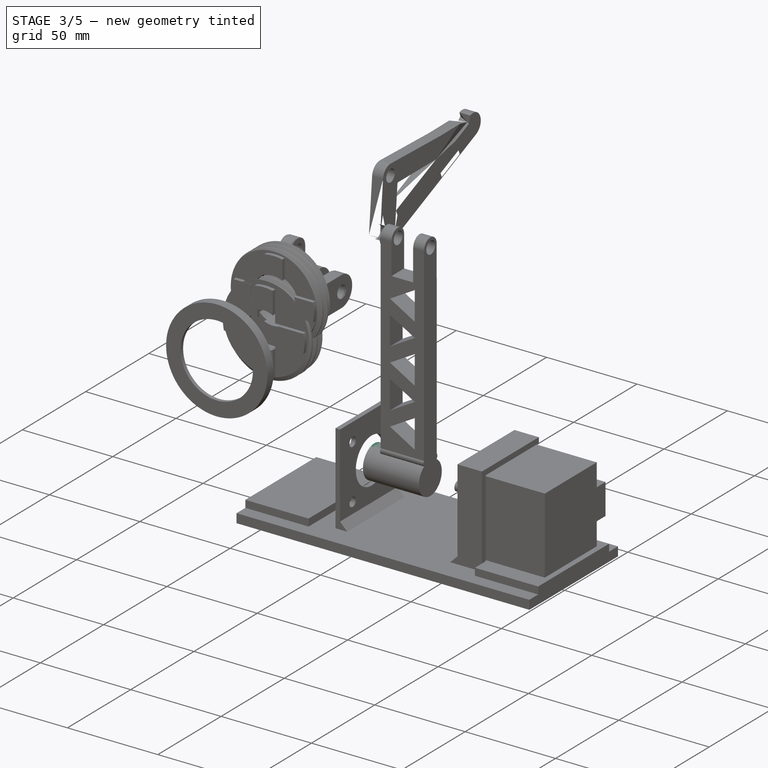
[diagram: stage 3 of 5 — iso view after this stage's code; geometry added in this stage tinted green]
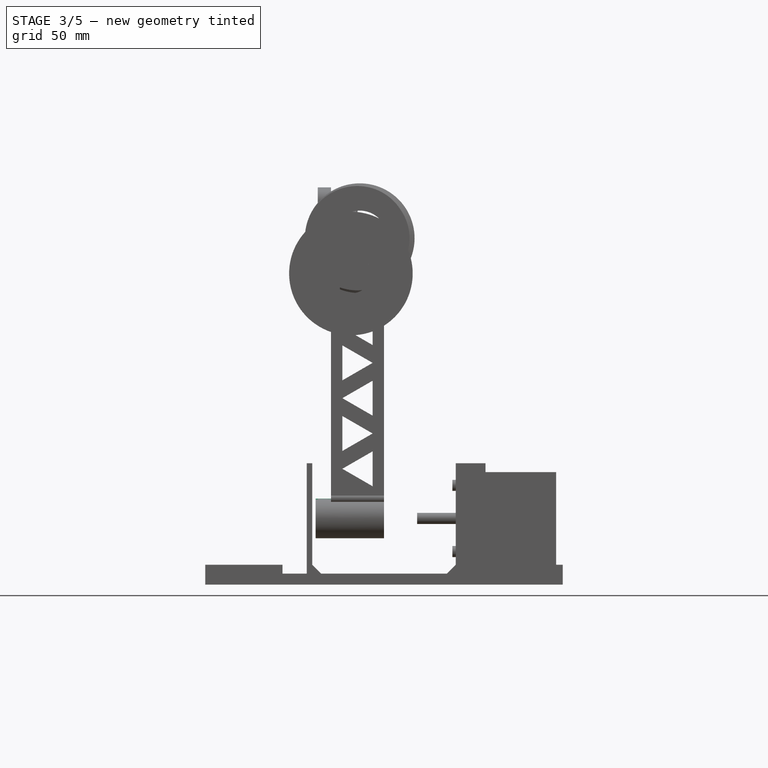
[diagram: stage 3 of 5 — front view after this stage's code; geometry added in this stage tinted green]
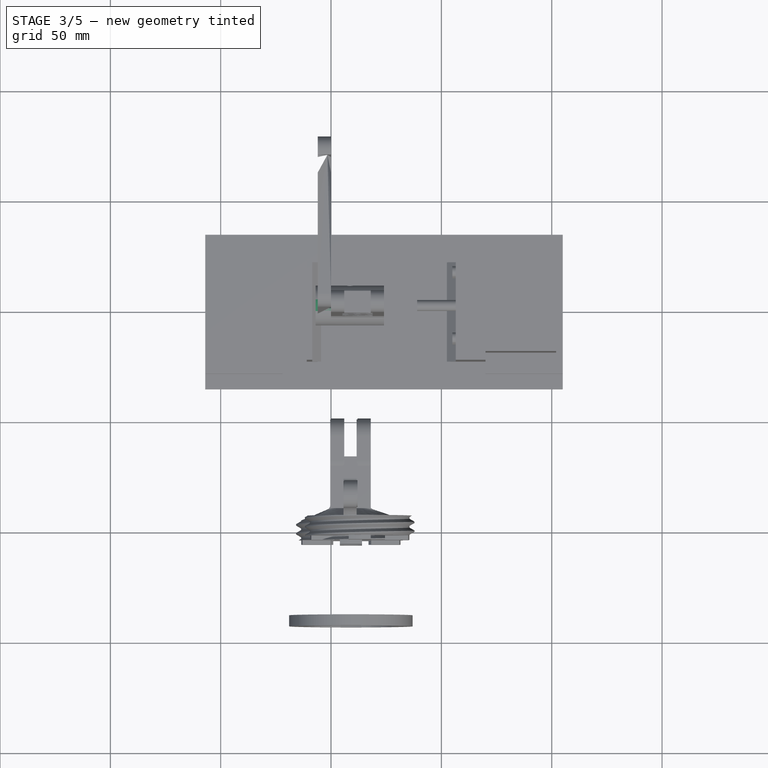
[diagram: stage 3 of 5 — top view after this stage's code; geometry added in this stage tinted green]
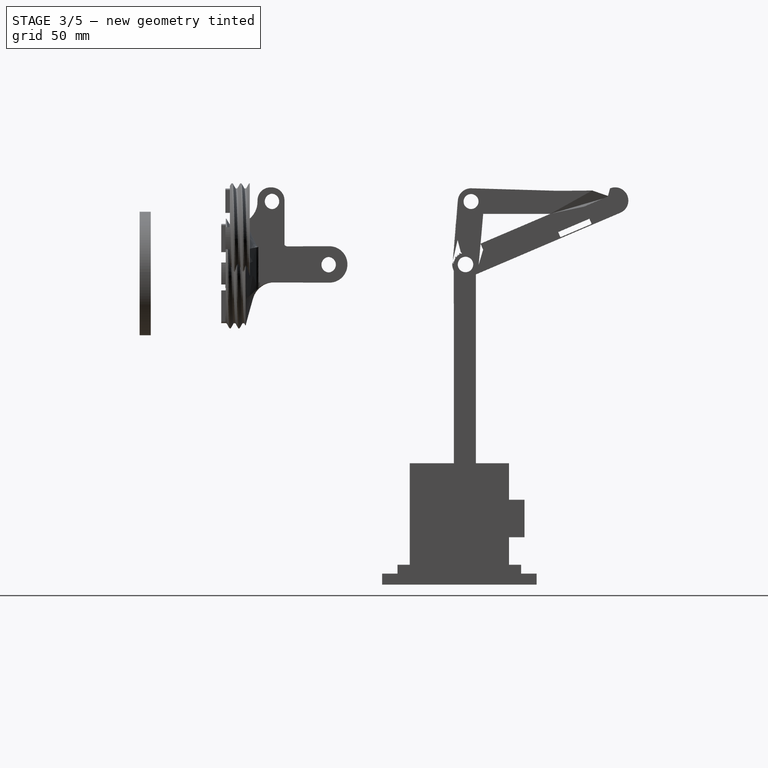
[diagram: stage 3 of 5 — right view after this stage's code; geometry added in this stage tinted green]
FEATURE [Sketcher::SketchObject] Sketch029
  FullyConstrained = false
  Placement = pos=(0,0,0) rot=(1,0,0;1.5708rad)
  sketch-geometry (19):
    g0: LineSegment StartX=56.5408 StartY=133.111 StartZ=0 EndX=56.5408 EndY=43.1108 EndZ=0
    g1: LineSegment StartX=79.5408 StartY=133.111 StartZ=0 EndX=79.5408 EndY=43.1108 EndZ=0
    g2: LineSegment StartX=56.5408 StartY=43.1108 StartZ=0 EndX=79.5408 EndY=43.1108 EndZ=0
    g3: LineSegment StartX=56.5408 StartY=133.111 StartZ=0 EndX=79.5408 EndY=133.111 EndZ=0
    g4: LineSegment StartX=60.6808 StartY=57.6108 StartZ=0 EndX=75.4033 EndY=66.1108 EndZ=0
    g5: LineSegment StartX=60.6808 StartY=57.6108 StartZ=0 EndX=75.4033 EndY=49.1108 EndZ=0
    g6: LineSegment StartX=75.4033 StartY=66.1108 StartZ=0 EndX=75.4033 EndY=49.1108 EndZ=0
    g7: LineSegment StartX=60.6784 StartY=65.1108 StartZ=0 EndX=60.6784 EndY=82.1108 EndZ=0
    g8: LineSegment StartX=60.6784 StartY=65.1108 StartZ=0 EndX=75.4008 EndY=73.6108 EndZ=0
    g9: LineSegment StartX=60.6784 StartY=82.1108 StartZ=0 EndX=75.4008 EndY=73.6108 EndZ=0
    g10: LineSegment StartX=60.6808 StartY=89.6108 StartZ=0 EndX=75.4033 EndY=98.1108 EndZ=0
    g11: LineSegment StartX=60.6808 StartY=89.6108 StartZ=0 EndX=75.4033 EndY=81.1108 EndZ=0
    g12: LineSegment StartX=75.4033 StartY=98.1108 StartZ=0 EndX=75.4033 EndY=81.1108 EndZ=0
    g13: LineSegment StartX=60.6784 StartY=97.1108 StartZ=0 EndX=60.6784 EndY=114.111 EndZ=0
    g14: LineSegment StartX=60.6784 StartY=97.1108 StartZ=0 EndX=75.4008 EndY=105.611 EndZ=0
    g15: LineSegment StartX=60.6784 StartY=114.111 StartZ=0 EndX=75.4008 EndY=105.611 EndZ=0
    g16: LineSegment StartX=60.6808 StartY=121.611 StartZ=0 EndX=75.4033 EndY=130.111 EndZ=0
    g17: LineSegment StartX=75.4033 StartY=130.111 StartZ=0 EndX=75.4033 EndY=113.111 EndZ=0
    g18: LineSegment StartX=60.6808 StartY=121.611 StartZ=0 EndX=75.4033 EndY=113.111 EndZ=0
  constraints (55):
    c: Vertical(g0)
    c: Vertical(g1)
    c: Coincident(g2,g0)
    c: Coincident(g2,g1)
    c: Horizontal(g2)
    c: Coincident(g3,g0)
    c: Coincident(g3,g1)
    c: Horizontal(g3)
    c: DistanceX(g3,g3) = 23
    c: DistanceY(g1,g1) = 90
    c: Coincident(g5,g4)
    c: Coincident(g6,g4)
    c: Coincident(g6,g5)
    c: Vertical(g6)
    c: Angle(g5,g4) = 1.0472
    c: Angle(g4,g6) = 1.0472
    c: DistanceY(g6,g6) = 17
    c: Distance(g4,g0) = 4.14
    c: Coincident(g8,g7)
    c: Coincident(g9,g7)
    c: Coincident(g9,g8)
    c: Angle(g8,g7) = 1.0472
    c: Angle(g7,g9) = 1.0472
    c: Vertical(g7)
    c: DistanceY(g7,g7) = 17
    c: Distance(g8,g1) = 4.14
    c: Coincident(g11,g10)
    c: Coincident(g12,g10)
    c: Coincident(g12,g11)
    c: Vertical(g12)
    c: Angle(g11,g10) = 1.0472
    c: Angle(g10,g12) = 1.0472
    c: DistanceY(g12,g12) = 17
    c: Distance(g10,g0) = 4.14
    c: Coincident(g14,g13)
    c: Coincident(g15,g13)
    c: Coincident(g15,g14)
    c: Angle(g14,g13) = 1.0472
    c: Angle(g13,g15) = 1.0472
    c: Vertical(g13)
    c: DistanceY(g13,g13) = 17
    c: Distance(g14,g1) = 4.14
    c: Coincident(g18,g16)
    c: Coincident(g17,g16)
    c: Coincident(g17,g18)
    c: Vertical(g17)
    c: Angle(g18,g16) = 1.0472
    c: Angle(g16,g17) = 1.0472
    c: DistanceY(g17,g17) = 17
    c: Distance(g16,g0) = 4.14
    c: Distance(g5,g2) = 6
    c: DistanceY(g4,g8) = 7.5
    c: DistanceY(g7,g10) = 7.5
    c: DistanceY(g10,g14) = 7.5
    c: DistanceY(g13,g16) = 7.5
FEATURE [Part::Feature] Face
  shape: bbox 15.96 x 13.57 x 2e-07 mm, 1 faces, 0 solids (baked)
FEATURE [Part::Feature] Face001
  shape: bbox 21.96 x 19.88 x 2e-07 mm, 1 faces, 0 solids (baked)
FEATURE [Part::Feature] Face002
  shape: bbox 25.74 x 23.3 x 2e-07 mm, 1 faces, 0 solids (baked)
FEATURE [Part::Feature] Face003
  shape: bbox 30.39 x 27.95 x 2e-07 mm, 1 faces, 0 solids (baked)
FEATURE [Part::Feature] Face004
  shape: bbox 4.4 x 12.1 x 2e-07 mm, 1 faces, 0 solids (baked)
FEATURE [Part::Extrusion] Extrude029  label="Extrude"
  Base = -> Face
  Dir = (0,0,1)
  DirMode = 0
  FaceMakerClass = Part::FaceMakerBullseye
  LengthFwd = 5
  LengthRev = 0
  Solid = false
  Symmetric = false
FEATURE [Part::Extrusion] Extrude030
  Base = -> Face001
  Dir = (0,0,1)
  DirMode = 0
  FaceMakerClass = Part::FaceMakerBullseye
  LengthFwd = 5
  LengthRev = 0
  Solid = false
  Symmetric = false
FEATURE [Part::Extrusion] Extrude032  label="Extrude003"
  Base = -> Face004
  Dir = (0,0,1)
  DirMode = 0
  FaceMakerClass = Part::FaceMakerBullseye
  LengthFwd = 5
  LengthRev = 0
  Solid = false
  Symmetric = false
FEATURE [Part::Cut] Cut016
  Base = -> Extrude030
  Tool = -> Extrude029
FEATURE [Part::Cut] Cut017
  Base = -> Cut016
  Tool = -> Extrude032
FEATURE [Part::Feature] Face005
  shape: bbox 4.4 x 12.1 x 2e-07 mm, 1 faces, 0 solids (baked)
FEATURE [Part::Feature] Face006
  shape: bbox 21.96 x 19.88 x 2e-07 mm, 1 faces, 0 solids (baked)
FEATURE [Sketcher::SketchObject] Sketch035  label="Sketch006"
  FullyConstrained = false
  sketch-geometry (4):
    g0: ArcOfCircle CenterX=3e-16 CenterY=0 CenterZ=0 NormalX=0 NormalY=0 NormalZ=1 AngleXU=0 Radius=8.30611 StartAngle=4.22441 EndAngle=5.20037
    g1: ArcOfCircle CenterX=3e-16 CenterY=0 CenterZ=0 NormalX=0 NormalY=0 NormalZ=1 AngleXU=0 Radius=5.37276 StartAngle=4.1609 EndAngle=5.26388
    g2: LineSegment StartX=-2.81509 StartY=-4.57622 StartZ=0 EndX=-3.89424 EndY=-7.33664 EndZ=0
    g3: LineSegment StartX=3.89424 StartY=-7.33664 StartZ=0 EndX=2.81509 EndY=-4.57622 EndZ=0
  constraints (8):
    c: Coincident(g0,g-1)
    c: Symmetric(g0,g0,g-2)
    c: Coincident(g1,g0)
    c: Symmetric(g1,g1,g-2)
    c: Coincident(g2,g1)
    c: Coincident(g2,g0)
    c: Coincident(g3,g0)
    c: Coincident(g3,g1)
FEATURE [Part::Extrusion] Extrude041  label="Extrude012"
  Base = -> Face006
  Dir = (0,0,1)
  DirMode = 0
  FaceMakerClass = Part::FaceMakerBullseye
  LengthFwd = 5
  LengthRev = 0
  Solid = false
  Symmetric = false
FEATURE [Part::Feature] Face007
  shape: bbox 25.74 x 23.3 x 2e-07 mm, 1 faces, 0 solids (baked)
FEATURE [Part::Extrusion] Extrude038  label="Extrude009"
  Base = -> Face007
  Dir = (0,0,1)
  DirMode = 0
  FaceMakerClass = Part::FaceMakerBullseye
  LengthFwd = 5
  LengthRev = 0
  Solid = false
  Symmetric = false
FEATURE [Part::Extrusion] Extrude042  label="Extrude013"
  Base = -> Face005
  Dir = (0,0,1)
  DirMode = 0
  FaceMakerClass = Part::FaceMakerBullseye
  LengthFwd = 5
  LengthRev = 0
  Solid = false
  Symmetric = false
FEATURE [Part::Extrusion] Extrude043  label="Extrude014"
  Base = -> Sketch035
  Dir = (0,0,1)
  DirMode = 0
  FaceMakerClass = Part::FaceMakerBullseye
  LengthFwd = 5
  LengthRev = 0
  Solid = true
  Symmetric = false
FEATURE [Part::Feature] Face008
  shape: bbox 15.96 x 13.57 x 2e-07 mm, 1 faces, 0 solids (baked)
FEATURE [Part::Extrusion] Extrude039  label="Extrude010"
  Base = -> Face008
  Dir = (0,0,1)
  DirMode = 0
  FaceMakerClass = Part::FaceMakerBullseye
  LengthFwd = 5
  LengthRev = 0
  Solid = false
  Symmetric = false
FEATURE [Part::Feature] Face009
  shape: bbox 30.39 x 27.95 x 2e-07 mm, 1 faces, 0 solids (baked)
FEATURE [Part::Extrusion] Extrude044  label="Extrude015"
  Base = -> Face009
  Dir = (0,0,1)
  DirMode = 0
  FaceMakerClass = Part::FaceMakerBullseye
  LengthFwd = 5
  LengthRev = 0
  Solid = false
  Symmetric = false
FEATURE [Part::Cut] Cut021  label="Cut005"
  Base = -> Extrude044
  Tool = -> Extrude038
FEATURE [Part::MultiFuse] Fusion040  label="Fusion007"
  Shapes = -> [Cut021,Extrude043]
FEATURE [Part::Extrusion] Extrude045  label="Extrude016"
  Base = -> Face009
  Dir = (0,0,1)
  DirMode = 0
  FaceMakerClass = Part::FaceMakerBullseye
  LengthFwd = 1
  LengthRev = 0
  Solid = false
  Symmetric = false
FEATURE [Part::Cut] Cut022  label="Cut006"
  Base = -> Extrude041
  Tool = -> Extrude039
FEATURE [Part::Cut] Cut023  label="Cut007"
  Base = -> Cut022
  Tool = -> Extrude042
FEATURE [Part::MultiFuse] Fusion037  label="Fusion004"
  Shapes = -> [Cut021,Extrude043,Fusion040,Cut023]
FEATURE [Part::MultiFuse] Fusion038  label="Fusion005"
  Shapes = -> [Extrude045,Fusion037]
FEATURE [PartDesign::FeatureBase] BaseFeature003
  BaseFeature = -> Fusion037
FEATURE [PartDesign::Pad] Pad001
  BaseFeature = -> BaseFeature003
  Direction = (1,1,1)
  Length = 2
  Length2 = 100
  Profile = -> BaseFeature003 [Face14,Face19,Face16,Face21,Face20]
  Type = 0
FEATURE [Sketcher::SketchObject] Sketch034  label="Sketch005"
  ExternalGeometry = -> [Pad001]
  FullyConstrained = true
  Placement = pos=(0,0,0) rot=(1,0,0;1.5708rad)
  sketch-geometry (1):
    g0: Circle CenterX=0 CenterY=4 CenterZ=0 NormalX=0 NormalY=0 NormalZ=1 AngleXU=0 Radius=2
  constraints (3):
    c: PointOnObject(g0,g-2)
    c: Radius(g0) = 2
    c: Distance(g0,g-3) = 3
FEATURE [Part::MultiFuse] Fusion039  label="Fusion006"
  Shapes = -> [Pad001,Fusion038]
FEATURE [Part::Extrusion] Extrude040  label="Extrude011"
  Base = -> Sketch034
  Dir = (0,-1,3e-16)
  DirMode = 2
  FaceMakerClass = Part::FaceMakerBullseye
  LengthFwd = -14
  LengthRev = 0
  Solid = true
  Symmetric = false
FEATURE [Part::Cut] Cut020  label="Cut004"
  Base = -> Fusion039
  Placement = pos=(77,2.5,30) rot=(0,-1,0;1.5708rad)
  Tool = -> Extrude040
FEATURE [PartDesign::FeatureBase] BaseFeature002
  BaseFeature = -> Cut020
  Placement = pos=(0,0,-12) rot=(0,1,0;0rad)
FEATURE [Part::Feature] Face010
  shape: bbox 30.39 x 27.95 x 2e-07 mm, 1 faces, 0 solids (baked)
FEATURE [Part::Extrusion] Extrude046  label="Extrude018"
  Base = -> Face010
  Dir = (0,0,1)
  DirMode = 0
  FaceMakerClass = Part::FaceMakerBullseye
  LengthFwd = 6
  LengthRev = 0
  Solid = false
  Symmetric = false
FEATURE [Part::Feature] Face011
  shape: bbox 19.84 x 19.63 x 2e-07 mm, 1 faces, 0 solids (baked)
FEATURE [Part::Extrusion] Extrude048  label="Extrude020"
  Base = -> Face011
  Dir = (0,0,1)
  DirMode = 0
  FaceMakerClass = Part::FaceMakerBullseye
  LengthFwd = -18
  LengthRev = 0
  Solid = false
  Symmetric = false
FEATURE [Part::Feature] Face012
  shape: bbox 30.39 x 27.95 x 2e-07 mm, 1 faces, 0 solids (baked)
FEATURE [Part::Extrusion] Extrude049  label="Extrude022"
  Base = -> Face012
  Dir = (0,0,1)
  DirMode = 0
  FaceMakerClass = Part::FaceMakerBullseye
  LengthFwd = -1
  LengthRev = 0
  Solid = false
  Symmetric = false
FEATURE [Part::Extrusion] Extrude060
  Base = -> Face019
  Dir = (0,0,1)
  DirMode = 0
  FaceMakerClass = Part::FaceMakerBullseye
  LengthFwd = 5
  LengthRev = 0
  Solid = false
  Symmetric = false
FEATURE [Part::Extrusion] Extrude059
  Base = -> Face018
  Dir = (0,0,1)
  DirMode = 0
  FaceMakerClass = Part::FaceMakerBullseye
  LengthFwd = 5
  LengthRev = 0
  Solid = false
  Symmetric = false
FEATURE [Part::Cut] Cut029
  Base = -> Extrude060
  Tool = -> Extrude059
FEATURE [Part::Feature] Face022
  shape: bbox 4.4 x 12.1 x 2e-07 mm, 1 faces, 0 solids (baked)
FEATURE [Part::Extrusion] Extrude062
  Base = -> Face022
  Dir = (0,0,1)
  DirMode = 0
  FaceMakerClass = Part::FaceMakerBullseye
  LengthFwd = 5
  LengthRev = 0
  Solid = false
  Symmetric = false
FEATURE [Part::Cut] Cut030
  Base = -> Cut029
  Tool = -> Extrude062
FEATURE [Part::Cylinder] Cylinder031
  Angle = 360
  AttacherType = Attacher::AttachEngine3D
  Height = 23
  Placement = pos=(50,-1,39) rot=(0,1,0;1.5708rad)
  Radius = 2
FEATURE [Part::Cylinder] Cylinder032
  Angle = 360
  AttacherType = Attacher::AttachEngine3D
  Height = 23
  Placement = pos=(50,6,39) rot=(0,1,0;1.5708rad)
  Radius = 2
FEATURE [Part::Cylinder] Cylinder033
  Angle = 360
  AttacherType = Attacher::AttachEngine3D
  Height = 10
  Placement = pos=(70,2.5,30) rot=(0,1,0;1.5708rad)
  Radius = 9
FEATURE [Part::Extrusion] Extrude035  label="Extrude006"
  Base = -> Face003
  Dir = (0,0,1)
  DirMode = 0
  FaceMakerClass = Part::FaceMakerBullseye
  LengthFwd = 1
  LengthRev = 0
  Solid = false
  Symmetric = false
FEATURE [Part::MultiFuse] Fusion033  label="Fusion"
  Shapes = -> [Cut018,Extrude034]
FEATURE [Part::MultiFuse] Fusion034  label="Fusion001"
  Shapes = -> [Cut018,Extrude034,Fusion033,Cut017]
FEATURE [PartDesign::FeatureBase] BaseFeature
  BaseFeature = -> Fusion034
FEATURE [PartDesign::Pad] Pad
  BaseFeature = -> BaseFeature
  Direction = (1,1,1)
  Length = 2
  Length2 = 100
  Profile = -> BaseFeature [Face14,Face19,Face16,Face21,Face20]
  Type = 0
FEATURE [Sketcher::SketchObject] Sketch032
  ExternalGeometry = -> [Pad]
  FullyConstrained = true
  Placement = pos=(0,0,0) rot=(1,0,0;1.5708rad)
  sketch-geometry (1):
    g0: Circle CenterX=0 CenterY=4 CenterZ=0 NormalX=0 NormalY=0 NormalZ=1 AngleXU=0 Radius=2
  constraints (3):
    c: PointOnObject(g0,g-2)
    c: Radius(g0) = 2
    c: Distance(g0,g-3) = 3
FEATURE [Part::Extrusion] Extrude036  label="Extrude007"
  Base = -> Sketch032
  Dir = (0,-1,2e-16)
  DirMode = 2
  FaceMakerClass = Part::FaceMakerBullseye
  LengthFwd = -14
  LengthRev = 0
  Solid = true
  Symmetric = false
FEATURE [Part::MultiFuse] Fusion035  label="Fusion002"
  Shapes = -> [Extrude035,Fusion034]
FEATURE [Part::MultiFuse] Fusion036  label="Fusion003"
  Shapes = -> [Pad,Fusion035]
FEATURE [Part::Cut] Cut019  label="Cut003"
  Base = -> Fusion036
  Tool = -> Extrude036
FEATURE [PartDesign::FeatureBase] BaseFeature001
  BaseFeature = -> Cut019
FEATURE [Part::MultiFuse] Fusion041  label="Fusion008"
  Shapes = -> [BaseFeature001,Extrude046]
FEATURE [Part::MultiFuse] Fusion009
  Refine = true
  Shapes = -> [Fusion041,BaseFeature002]
FEATURE [Part::MultiFuse] Fusion042  label="Fusion010"
  Refine = true
  Shapes = -> [Extrude049,Fusion009]
FEATURE [Part::Cut] Cut024
  Base = -> Fusion042
  Placement = pos=(57,2.5,30) rot=(0,-1,0;1.5708rad)
  Refine = true
  Tool = -> Extrude048
FEATURE [Part::MultiFuse] Fusion060
  Placement = pos=(-7,0,0) rot=(0,0,1;0rad)
  Refine = true
  Shapes = -> [Cut024,Cylinder033]
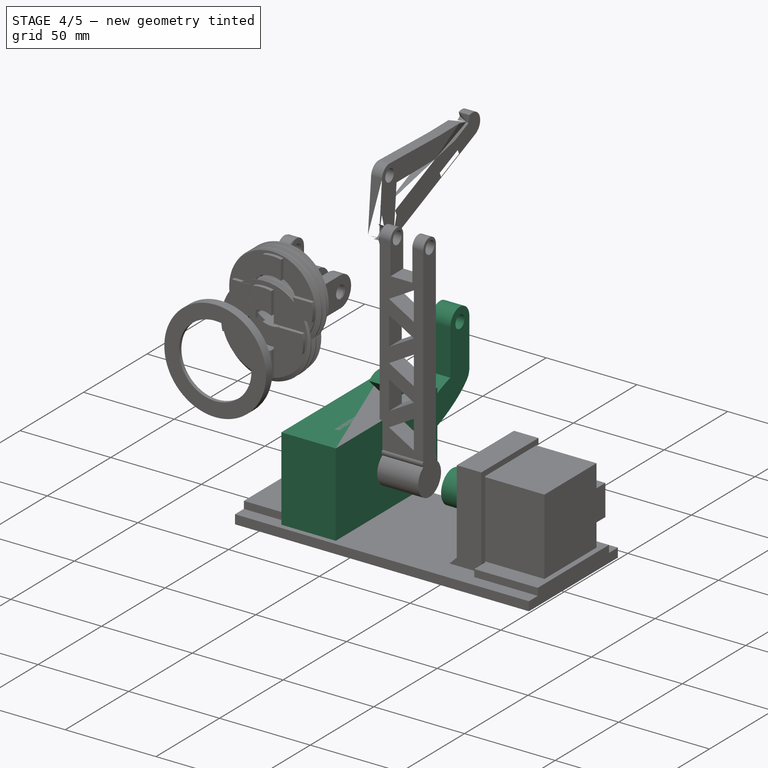
[diagram: stage 4 of 5 — iso view after this stage's code; geometry added in this stage tinted green]
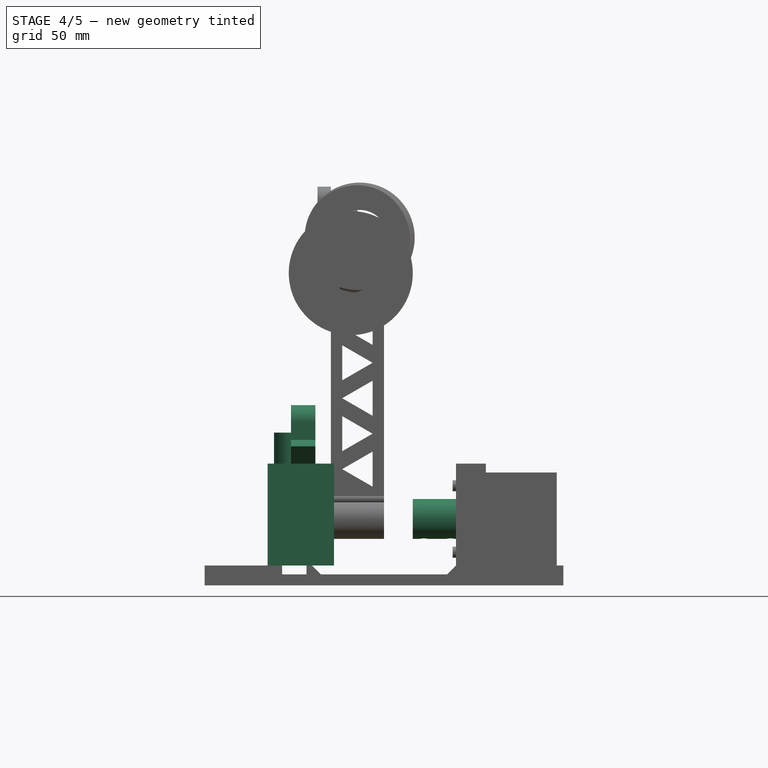
[diagram: stage 4 of 5 — front view after this stage's code; geometry added in this stage tinted green]
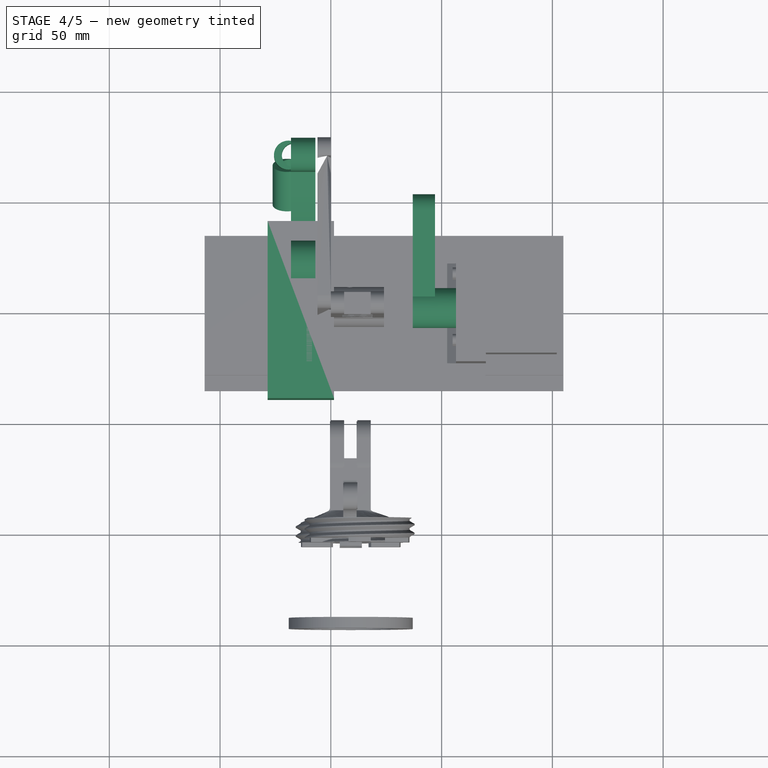
[diagram: stage 4 of 5 — top view after this stage's code; geometry added in this stage tinted green]
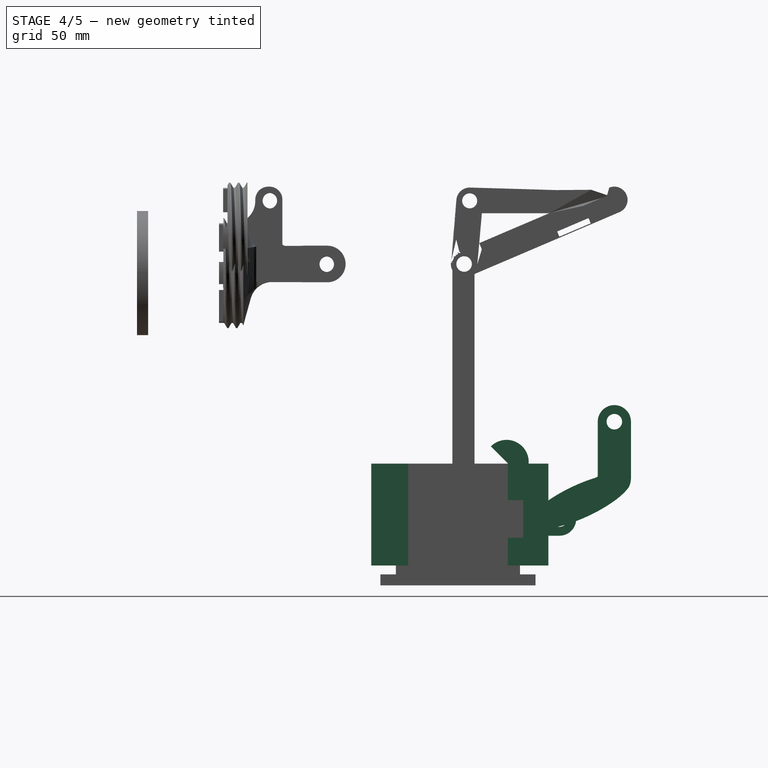
[diagram: stage 4 of 5 — right view after this stage's code; geometry added in this stage tinted green]
FEATURE [Part::Box] Box020  label="Cube001"
  AttacherType = Attacher::AttachEngine3D
  Height = 46
  Length = 30
  Placement = pos=(21.4548,-39.1411,9) rot=(0,0,1;0rad)
  Width = 80
FEATURE [Part::Cylinder] Cylinder011
  Angle = 360
  AttacherType = Attacher::AttachEngine3D
  Height = 11
  Placement = pos=(32,0,55) rot=(0,1,0;1.5708rad)
  Radius = 10
FEATURE [Part::Box] Box021  label="Cube002"
  AttacherType = Attacher::AttachEngine3D
  Height = 46
  Length = 30
  Placement = pos=(21.4548,-39.1411,9) rot=(0,0,1;0rad)
  Width = 80
FEATURE [Part::Cut] Cut007  label="forma lateral001"
  Base = -> Cylinder011
  Placement = pos=(0,-16.9437,16.8162) rot=(-1,0,0;0.785398rad)
  Refine = true
  Tool = -> Box021
FEATURE [Sketcher::SketchObject] Sketch
  FullyConstrained = false
  Placement = pos=(0,0,0) rot=(0.57735,-0.57735,-0.57735;2.0944rad)
  sketch-geometry (10):
    g0: ArcOfCircle CenterX=-73.5124 CenterY=74.8985 CenterZ=0 NormalX=0 NormalY=0 NormalZ=1 AngleXU=0 Radius=7.5 StartAngle=2e-16 EndAngle=3.14159
    g1: LineSegment StartX=-81.0124 StartY=74.8985 StartZ=0 EndX=-81.0124 EndY=49.4839 EndZ=0
    g2: LineSegment StartX=-66.0124 StartY=74.8985 StartZ=0 EndX=-66.0124 EndY=49.8985 EndZ=0
    g3: Circle CenterX=-73.5124 CenterY=74.8985 CenterZ=0 NormalX=0 NormalY=0 NormalZ=1 AngleXU=0 Radius=3.5
    g4: ArcOfEllipse CenterX=-58.3052 CenterY=39.0253 CenterZ=0 NormalX=0 NormalY=0 NormalZ=1 MajorRadius=25 MinorRadius=7.5 AngleXU=2.70997 StartAngle=0.450101 EndAngle=5.1926
    g5: LineSegment StartX=-81.0124 StartY=49.4839 StartZ=0 EndX=-35.598 EndY=28.5667 EndZ=0
    g6: LineSegment StartX=-61.4428 StartY=32.2131 StartZ=0 EndX=-55.1676 EndY=45.8375 EndZ=0
    g7: GeomPoint X=-79.9665 Y=49.0022 Z=0
    g8: GeomPoint X=-36.6439 Y=29.0485 Z=0
    g9: ArcOfCircle CenterX=-71.7825 CenterY=49.4469 CenterZ=0 NormalX=0 NormalY=0 NormalZ=1 AngleXU=0 Radius=9.23 StartAngle=3.13759 EndAngle=3.58602
  constraints (17):
    c: Tangent(g0,g2) = 1.5708
    c: Tangent(g0,g1) = -1.5708
    c: Coincident(g1,g5) = -1.5708
    c: Vertical(g1)
    c: DistanceY(g2,g2) = 25
    c: DistanceX(g0,g0) = 15
    c: Coincident(g3,g0)
    c: Radius(g3) = 3.5
    c: InternalAlignment(g5-g8 -> g4) x4
    c: Distance(g6) = 15
    c: Distance(g5) = 50
    c: Coincident(g2,g4)
    c: Angle(g5,g-1) = 0.43162
    c: DistanceX(g1,g2) = 15
    c: Coincident(g9,g1)
    c: Coincident(g9,g4)
    c: Radius(g9) = 9.23
FEATURE [Part::Extrusion] Extrude  label="Palito 1"
  Base = -> Sketch
  Dir = (-1,0,0)
  DirMode = 2
  FaceMakerClass = Part::FaceMakerBullseye
  LengthFwd = 11
  LengthRev = 0
  Placement = pos=(43,-2.9,-1) rot=(0,0,1;0rad)
  Solid = true
  Symmetric = false
FEATURE [Part::Extrusion] Extrude006  label="Palito 1 codo"
  Base = -> Sketch007
  Dir = (-1,0,0)
  DirMode = 2
  FaceMakerClass = Part::FaceMakerBullseye
  LengthFwd = 10
  LengthRev = 0
  Placement = pos=(97,0,0) rot=(0,0,1;0rad)
  Solid = true
  Symmetric = false
FEATURE [Sketcher::SketchObject] Sketch027  label="sk_cables003"
  FullyConstrained = false
  Placement = pos=(0,0,0) rot=(1,0,0;1.5708rad)
  sketch-geometry (2):
    g0: ArcOfCircle CenterX=0 CenterY=0 CenterZ=0 NormalX=0 NormalY=0 NormalZ=1 AngleXU=0 Radius=6.5 StartAngle=4.07396 EndAngle=8.49241
    g1: ArcOfCircle CenterX=-2.45779 CenterY=0 CenterZ=0 NormalX=0 NormalY=0 NormalZ=1 AngleXU=0 Radius=5.40832 StartAngle=4.44753 EndAngle=8.11884
  constraints (5):
    c: Coincident(g0,g-1)
    c: Radius(g0) = 6.5
    c: Symmetric(g0,g0,g-1)
    c: Coincident(g1,g0)
    c: Coincident(g1,g0)
FEATURE [Part::Extrusion] Extrude026  label="palo1 cables 1"
  Base = -> Sketch027
  Dir = (0,-1,2e-16)
  DirMode = 2
  FaceMakerClass = Part::FaceMakerBullseye
  LengthFwd = 20
  LengthRev = 0
  Placement = pos=(30.8353,70.3789,49) rot=(0,0.707107,-0.707107;3.14159rad)
  Solid = true
  Symmetric = false
FEATURE [Sketcher::SketchObject] Sketch028  label="sk_cables004"
  FullyConstrained = false
  Placement = pos=(0,0,0) rot=(1,0,0;1.5708rad)
  sketch-geometry (2):
    g0: ArcOfCircle CenterX=0 CenterY=0 CenterZ=0 NormalX=0 NormalY=0 NormalZ=1 AngleXU=0 Radius=6.5 StartAngle=4.07396 EndAngle=8.49241
    g1: ArcOfCircle CenterX=-2.45779 CenterY=0 CenterZ=0 NormalX=0 NormalY=0 NormalZ=1 AngleXU=0 Radius=5.40832 StartAngle=4.44753 EndAngle=8.11884
  constraints (5):
    c: Coincident(g0,g-1)
    c: Radius(g0) = 6.5
    c: Symmetric(g0,g0,g-1)
    c: Coincident(g1,g0)
    c: Coincident(g1,g0)
FEATURE [Part::Extrusion] Extrude027  label="palo1 cables 2"
  Base = -> Sketch028
  Dir = (0,-1,2e-16)
  DirMode = 2
  FaceMakerClass = Part::FaceMakerBullseye
  LengthFwd = 20
  LengthRev = 0
  Placement = pos=(30.24,66.17,43.48) rot=(-0.031833,0.969804,0.241799;3.39557rad)
  Solid = true
  Symmetric = false
FEATURE [App::Link] Link022  label="union centro_arriba001"
  LinkPlacement = pos=(73,-0.03,0) rot=(0,0,1;0rad)
  LinkedObject = -> Extrude058
  Placement = pos=(73,-0.03,0) rot=(0,0,1;0rad)
FEATURE [Part::Feature] Face018
  shape: bbox 15.96 x 13.57 x 2e-07 mm, 1 faces, 0 solids (baked)
FEATURE [Part::Feature] Face019
  shape: bbox 21.96 x 19.88 x 2e-07 mm, 1 faces, 0 solids (baked)
FEATURE [Part::Feature] Face020
  shape: bbox 25.74 x 23.3 x 2e-07 mm, 1 faces, 0 solids (baked)
FEATURE [Part::Feature] Face021
  shape: bbox 30.39 x 27.95 x 2e-07 mm, 1 faces, 0 solids (baked)
FEATURE [Sketcher::SketchObject] Sketch041
  FullyConstrained = false
  sketch-geometry (4):
    g0: ArcOfCircle CenterX=3e-16 CenterY=0 CenterZ=0 NormalX=0 NormalY=0 NormalZ=1 AngleXU=0 Radius=8.30611 StartAngle=4.22441 EndAngle=5.20037
    g1: ArcOfCircle CenterX=3e-16 CenterY=0 CenterZ=0 NormalX=0 NormalY=0 NormalZ=1 AngleXU=0 Radius=5.37276 StartAngle=4.1609 EndAngle=5.26388
    g2: LineSegment StartX=-2.81509 StartY=-4.57622 StartZ=0 EndX=-3.89424 EndY=-7.33664 EndZ=0
    g3: LineSegment StartX=3.89424 StartY=-7.33664 StartZ=0 EndX=2.81509 EndY=-4.57622 EndZ=0
  constraints (8):
    c: Coincident(g0,g-1)
    c: Symmetric(g0,g0,g-2)
    c: Coincident(g1,g0)
    c: Symmetric(g1,g1,g-2)
    c: Coincident(g2,g1)
    c: Coincident(g2,g0)
    c: Coincident(g3,g0)
    c: Coincident(g3,g1)
FEATURE [Part::Feature] Face023
  shape: bbox 4.4 x 12.1 x 2e-07 mm, 1 faces, 0 solids (baked)
FEATURE [Part::Feature] Face024
  shape: bbox 21.96 x 19.88 x 2e-07 mm, 1 faces, 0 solids (baked)
FEATURE [Sketcher::SketchObject] Sketch045
  FullyConstrained = false
  sketch-geometry (4):
    g0: ArcOfCircle CenterX=3e-16 CenterY=0 CenterZ=0 NormalX=0 NormalY=0 NormalZ=1 AngleXU=0 Radius=8.30611 StartAngle=4.22441 EndAngle=5.20037
    g1: ArcOfCircle CenterX=3e-16 CenterY=0 CenterZ=0 NormalX=0 NormalY=0 NormalZ=1 AngleXU=0 Radius=5.37276 StartAngle=4.1609 EndAngle=5.26388
    g2: LineSegment StartX=-2.81509 StartY=-4.57622 StartZ=0 EndX=-3.89424 EndY=-7.33664 EndZ=0
    g3: LineSegment StartX=3.89424 StartY=-7.33664 StartZ=0 EndX=2.81509 EndY=-4.57622 EndZ=0
  constraints (8):
    c: Coincident(g0,g-1)
    c: Symmetric(g0,g0,g-2)
    c: Coincident(g1,g0)
    c: Symmetric(g1,g1,g-2)
    c: Coincident(g2,g1)
    c: Coincident(g2,g0)
    c: Coincident(g3,g0)
    c: Coincident(g3,g1)
FEATURE [Part::Extrusion] Extrude071
  Base = -> Face024
  Dir = (0,0,1)
  DirMode = 0
  FaceMakerClass = Part::FaceMakerBullseye
  LengthFwd = 5
  LengthRev = 0
  Solid = false
  Symmetric = false
FEATURE [Part::Feature] Face025
  shape: bbox 25.74 x 23.3 x 2e-07 mm, 1 faces, 0 solids (baked)
FEATURE [Part::Extrusion] Extrude068
  Base = -> Face025
  Dir = (0,0,1)
  DirMode = 0
  FaceMakerClass = Part::FaceMakerBullseye
  LengthFwd = 5
  LengthRev = 0
  Solid = false
  Symmetric = false
FEATURE [Part::Extrusion] Extrude072
  Base = -> Face023
  Dir = (0,0,1)
  DirMode = 0
  FaceMakerClass = Part::FaceMakerBullseye
  LengthFwd = 5
  LengthRev = 0
  Solid = false
  Symmetric = false
FEATURE [Part::Extrusion] Extrude073
  Base = -> Sketch045
  Dir = (0,0,1)
  DirMode = 0
  FaceMakerClass = Part::FaceMakerBullseye
  LengthFwd = 5
  LengthRev = 0
  Solid = true
  Symmetric = false
FEATURE [Part::Feature] Face026
  shape: bbox 15.96 x 13.57 x 2e-07 mm, 1 faces, 0 solids (baked)
FEATURE [Part::Extrusion] Extrude069
  Base = -> Face026
  Dir = (0,0,1)
  DirMode = 0
  FaceMakerClass = Part::FaceMakerBullseye
  LengthFwd = 5
  LengthRev = 0
  Solid = false
  Symmetric = false
FEATURE [Part::Feature] Face027
  shape: bbox 30.39 x 27.95 x 2e-07 mm, 1 faces, 0 solids (baked)
FEATURE [Part::Extrusion] Extrude074
  Base = -> Face027
  Dir = (0,0,1)
  DirMode = 0
  FaceMakerClass = Part::FaceMakerBullseye
  LengthFwd = 5
  LengthRev = 0
  Solid = false
  Symmetric = false
FEATURE [Part::Cut] Cut034
  Base = -> Extrude074
  Tool = -> Extrude068
FEATURE [Part::MultiFuse] Fusion055
  Shapes = -> [Cut034,Extrude073]
FEATURE [Part::Extrusion] Extrude075
  Base = -> Face027
  Dir = (0,0,1)
  DirMode = 0
  FaceMakerClass = Part::FaceMakerBullseye
  LengthFwd = 1
  LengthRev = 0
  Solid = false
  Symmetric = false
FEATURE [Part::Cut] Cut035
  Base = -> Extrude071
  Tool = -> Extrude069
FEATURE [Part::Cut] Cut036
  Base = -> Cut035
  Tool = -> Extrude072
FEATURE [Part::MultiFuse] Fusion052
  Shapes = -> [Cut034,Extrude073,Fusion055,Cut036]
FEATURE [Part::MultiFuse] Fusion053
  Shapes = -> [Extrude075,Fusion052]
FEATURE [PartDesign::FeatureBase] BaseFeature008
  BaseFeature = -> Fusion052
FEATURE [PartDesign::Pad] Pad004
  BaseFeature = -> BaseFeature008
  Direction = (1,1,1)
  Length = 2
  Length2 = 100
  Profile = -> BaseFeature008 [Face14,Face19,Face16,Face21,Face20]
  Type = 0
FEATURE [Sketcher::SketchObject] Sketch044
  ExternalGeometry = -> [Pad004]
  FullyConstrained = true
  Placement = pos=(0,0,0) rot=(1,0,0;1.5708rad)
  sketch-geometry (1):
    g0: Circle CenterX=0 CenterY=4 CenterZ=0 NormalX=0 NormalY=0 NormalZ=1 AngleXU=0 Radius=2
  constraints (3):
    c: PointOnObject(g0,g-2)
    c: Radius(g0) = 2
    c: Distance(g0,g-3) = 3
FEATURE [Part::MultiFuse] Fusion054
  Shapes = -> [Pad004,Fusion053]
FEATURE [Part::Extrusion] Extrude070
  Base = -> Sketch044
  Dir = (0,-1,3e-16)
  DirMode = 2
  FaceMakerClass = Part::FaceMakerBullseye
  LengthFwd = -14
  LengthRev = 0
  Solid = true
  Symmetric = false
FEATURE [Part::Cut] Cut033
  Base = -> Fusion054
  Tool = -> Extrude070
FEATURE [PartDesign::FeatureBase] BaseFeature007
  BaseFeature = -> Cut033
  Placement = pos=(0,0,-12) rot=(0,1,0;0rad)
FEATURE [Part::Feature] Face028
  shape: bbox 30.39 x 27.95 x 2e-07 mm, 1 faces, 0 solids (baked)
FEATURE [Part::Extrusion] Extrude076
  Base = -> Face028
  Dir = (0,0,1)
  DirMode = 0
  FaceMakerClass = Part::FaceMakerBullseye
  LengthFwd = 6
  LengthRev = 0
  Solid = false
  Symmetric = false
FEATURE [Part::Feature] Face029
  shape: bbox 19.84 x 19.63 x 2e-07 mm, 1 faces, 0 solids (baked)
FEATURE [Part::Extrusion] Extrude078
  Base = -> Face029
  Dir = (0,0,1)
  DirMode = 0
  FaceMakerClass = Part::FaceMakerBullseye
  LengthFwd = -18
  LengthRev = 0
  Solid = false
  Symmetric = false
FEATURE [Part::Feature] Face030
  shape: bbox 30.39 x 27.95 x 2e-07 mm, 1 faces, 0 solids (baked)
FEATURE [Part::Extrusion] Extrude079
  Base = -> Face030
  Dir = (0,0,1)
  DirMode = 0
  FaceMakerClass = Part::FaceMakerBullseye
  LengthFwd = -1
  LengthRev = 0
  Solid = false
  Symmetric = false
FEATURE [Part::Extrusion] Extrude065
  Base = -> Face021
  Dir = (0,0,1)
  DirMode = 0
  FaceMakerClass = Part::FaceMakerBullseye
  LengthFwd = 1
  LengthRev = 0
  Solid = false
  Symmetric = false
FEATURE [Part::Extrusion] Extrude064
  Base = -> Sketch041
  Dir = (0,0,1)
  DirMode = 0
  FaceMakerClass = Part::FaceMakerBullseye
  LengthFwd = 5
  LengthRev = 0
  Solid = true
  Symmetric = false
FEATURE [Part::Extrusion] Extrude063
  Base = -> Face021
  Dir = (0,0,1)
  DirMode = 0
  FaceMakerClass = Part::FaceMakerBullseye
  LengthFwd = 5
  LengthRev = 0
  Solid = false
  Symmetric = false
FEATURE [Part::Extrusion] Extrude061
  Base = -> Face020
  Dir = (0,0,1)
  DirMode = 0
  FaceMakerClass = Part::FaceMakerBullseye
  LengthFwd = 5
  LengthRev = 0
  Solid = false
  Symmetric = false
FEATURE [Part::Cut] Cut031
  Base = -> Extrude063
  Tool = -> Extrude061
FEATURE [Part::MultiFuse] Fusion048
  Shapes = -> [Cut031,Extrude064]
FEATURE [Part::MultiFuse] Fusion049
  Shapes = -> [Cut031,Extrude064,Fusion048,Cut030]
FEATURE [PartDesign::FeatureBase] BaseFeature005
  BaseFeature = -> Fusion049
FEATURE [PartDesign::Pad] Pad003
  BaseFeature = -> BaseFeature005
  Direction = (1,1,1)
  Length = 2
  Length2 = 100
  Profile = -> BaseFeature005 [Face14,Face19,Face16,Face21,Face20]
  Type = 0
FEATURE [Part::MultiFuse] Fusion050
  Shapes = -> [Extrude065,Fusion049]
FEATURE [Sketcher::SketchObject] Sketch042
  ExternalGeometry = -> [Pad003]
  FullyConstrained = true
  Placement = pos=(0,0,0) rot=(1,0,0;1.5708rad)
  sketch-geometry (1):
    g0: Circle CenterX=0 CenterY=4 CenterZ=0 NormalX=0 NormalY=0 NormalZ=1 AngleXU=0 Radius=2
  constraints (3):
    c: PointOnObject(g0,g-2)
    c: Radius(g0) = 2
    c: Distance(g0,g-3) = 3
FEATURE [Part::Extrusion] Extrude066
  Base = -> Sketch042
  Dir = (0,-1,2e-16)
  DirMode = 2
  FaceMakerClass = Part::FaceMakerBullseye
  LengthFwd = -14
  LengthRev = 0
  Solid = true
  Symmetric = false
FEATURE [Part::MultiFuse] Fusion051
  Shapes = -> [Pad003,Fusion050]
FEATURE [Part::Cut] Cut032
  Base = -> Fusion051
  Tool = -> Extrude066
FEATURE [PartDesign::FeatureBase] BaseFeature006
  BaseFeature = -> Cut032
FEATURE [Part::MultiFuse] Fusion056
  Shapes = -> [BaseFeature006,Extrude076]
FEATURE [Part::MultiFuse] Fusion057
  Refine = true
  Shapes = -> [Fusion056,BaseFeature007]
FEATURE [Part::MultiFuse] Fusion058
  Refine = true
  Shapes = -> [Extrude079,Fusion057]
FEATURE [Part::Cut] Cut037
  Base = -> Fusion058
  Placement = pos=(100,26,30) rot=(0.57735,-0.57735,0.57735;4.18879rad)
  Refine = true
  Tool = -> Extrude078
FEATURE [Part::MultiFuse] Fusion059  label="Palito 1 v2"
  Placement = pos=(0,-24,0) rot=(0,0,1;0rad)
  Refine = true
  Shapes = -> [Extrude006,Cut037]
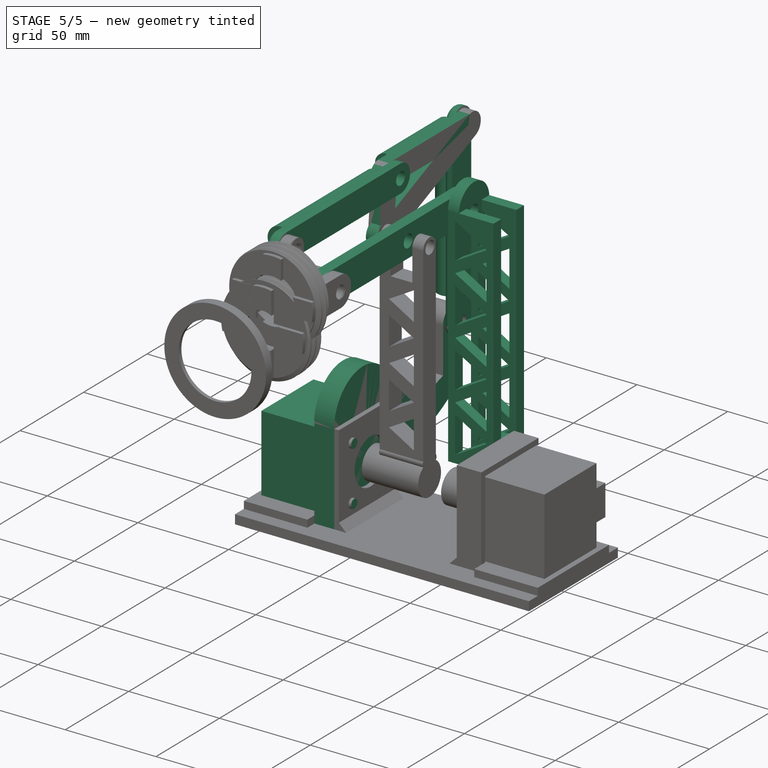
[diagram: stage 5 of 5 — iso view after this stage's code; geometry added in this stage tinted green]
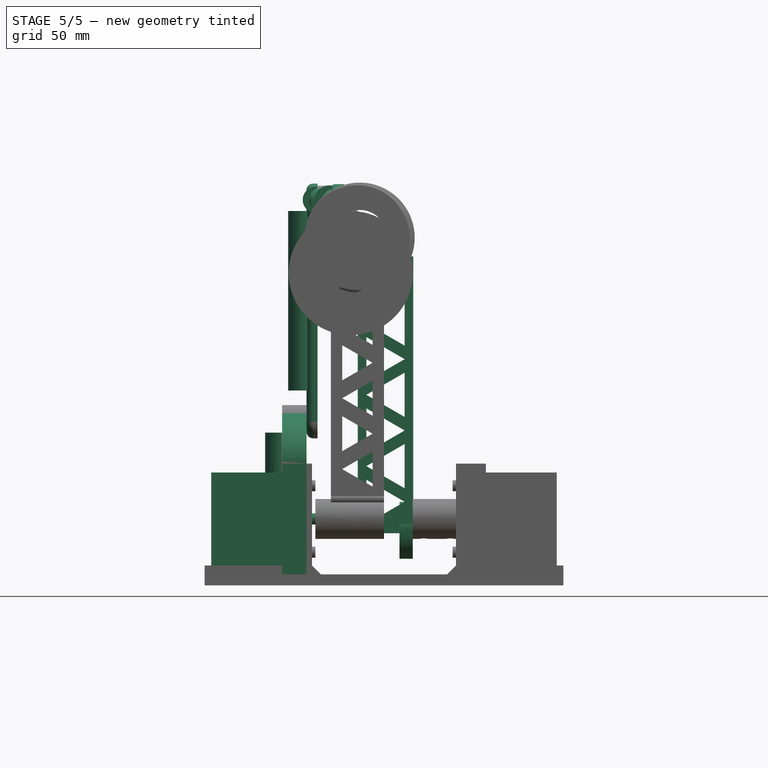
[diagram: stage 5 of 5 — front view after this stage's code; geometry added in this stage tinted green]
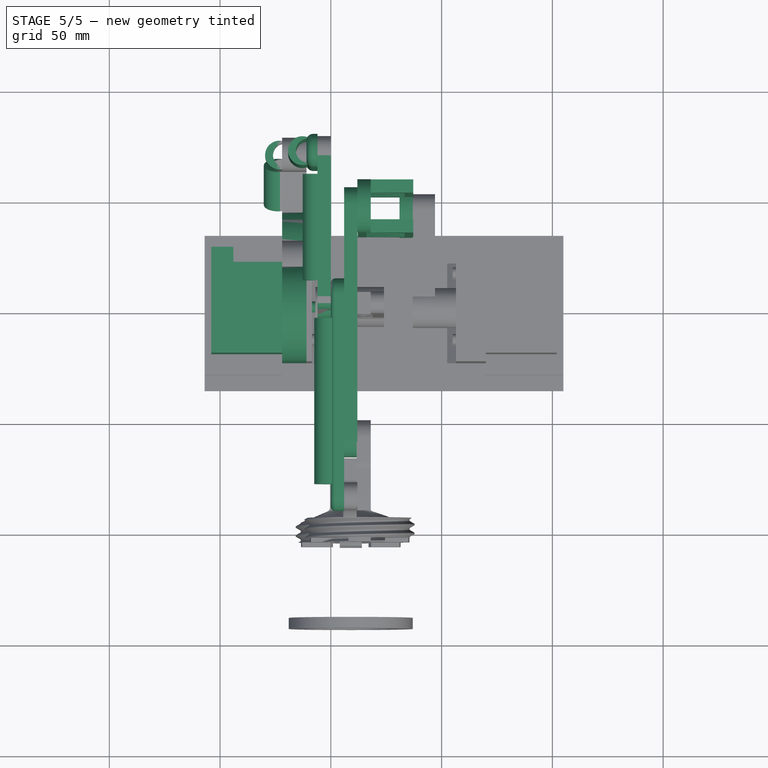
[diagram: stage 5 of 5 — top view after this stage's code; geometry added in this stage tinted green]
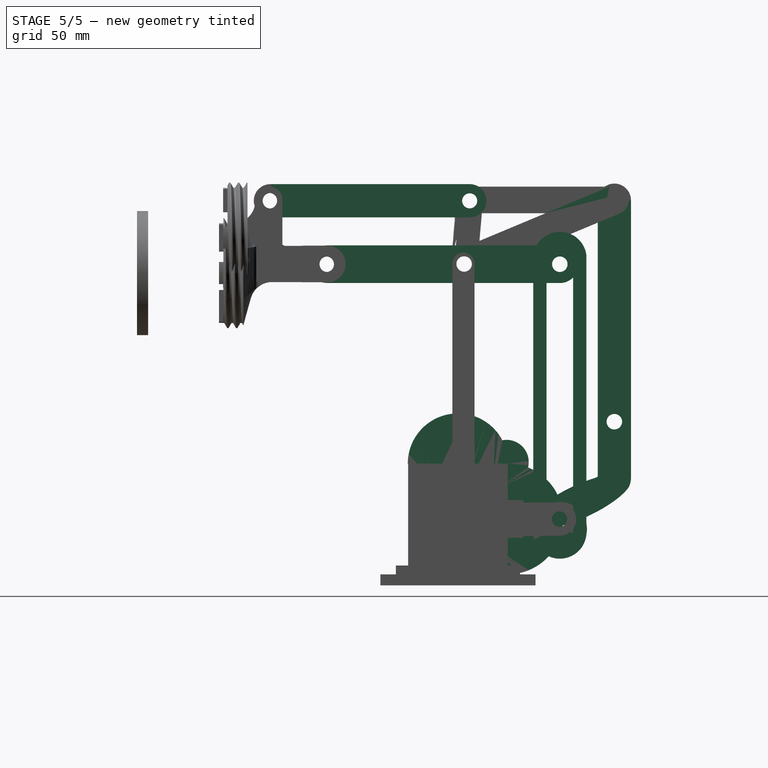
[diagram: stage 5 of 5 — right view after this stage's code; geometry added in this stage tinted green]
FEATURE [Part::Cylinder] Cylinder002  label="tonillo motor004"
  Angle = 360
  AttacherType = Attacher::AttachEngine3D
  Height = 4
  Placement = pos=(10,10,43) rot=(0,0,1;0rad)
  Radius = 2.5
FEATURE [Part::Box] Box003  label="Carcasa Motor"
  AttacherType = Attacher::AttachEngine3D
  Height = 3
  Length = 45
  Placement = pos=(0,0,40) rot=(0,0,1;0rad)
  Width = 50
FEATURE [Part::Box] Box004  label="alimentacion001"
  AttacherType = Attacher::AttachEngine3D
  Height = 10
  Length = 7
  Placement = pos=(45,16.5,0) rot=(0,0,1;0rad)
  Width = 17
FEATURE [Part::Cylinder] Cylinder003  label="Rotor001"
  Angle = 360
  AttacherType = Attacher::AttachEngine3D
  Height = 25
  Placement = pos=(25,25,38) rot=(0,0,1;0rad)
  Radius = 2.5
FEATURE [Part::Box] Box005  label="base motor"
  AttacherType = Attacher::AttachEngine3D
  Height = 40
  Length = 41
  Placement = pos=(4,4,0) rot=(0,0,1;0rad)
  Width = 42
FEATURE [App::Link] Link003  label="tonillo motor005"
  LinkPlacement = pos=(40,40,43) rot=(0,0,1;0rad)
  LinkedObject = -> Cylinder002
  Placement = pos=(40,40,43) rot=(0,0,1;0rad)
FEATURE [App::Link] Link004  label="tonillo motor006"
  LinkPlacement = pos=(40,10,43) rot=(0,0,1;0rad)
  LinkedObject = -> Cylinder002
  Placement = pos=(40,10,43) rot=(0,0,1;0rad)
FEATURE [App::Link] Link005  label="tonillo motor007"
  LinkPlacement = pos=(10,40,43) rot=(0,0,1;0rad)
  LinkedObject = -> Cylinder002
  Placement = pos=(10,40,43) rot=(0,0,1;0rad)
FEATURE [Part::MultiFuse] Fusion003  label="motor"
  Refine = true
  Shapes = -> [Cylinder003,Box005,Box004]
FEATURE [App::Link] Link006  label="lateral der"
  LinkPlacement = pos=(0,47,32) rot=(0,0,1;0rad)
  LinkedObject = -> Box006
  Placement = pos=(0,47,32) rot=(0,0,1;0rad)
FEATURE [Part::Box] Box006  label="lateral izq"
  AttacherType = Attacher::AttachEngine3D
  Height = 8
  Length = 45
  Placement = pos=(0,0,32) rot=(0,0,1;0rad)
  Width = 3
FEATURE [Part::Box] Box007  label="lateral frente"
  AttacherType = Attacher::AttachEngine3D
  Height = 8
  Length = 3
  Placement = pos=(0,0,32) rot=(0,0,1;0rad)
  Width = 50
FEATURE [Part::MultiFuse] Fusion004  label="Carcasa completa"
  Refine = true
  Shapes = -> [Box003,Box006,Link006,Box007]
FEATURE [App::Link] Link009  label="tonillo motor010"
  LinkPlacement = pos=(40,40,43) rot=(0,0,1;0rad)
  LinkedObject = -> Cylinder005
  Placement = pos=(40,40,43) rot=(0,0,1;0rad)
FEATURE [App::Link] Link010  label="tonillo motor011"
  LinkPlacement = pos=(40,10,43) rot=(0,0,1;0rad)
  LinkedObject = -> Cylinder005
  Placement = pos=(40,10,43) rot=(0,0,1;0rad)
FEATURE [Part::MultiFuse] Fusion002  label="Motor completo"
  Placement = pos=(-4,-22.5,5) rot=(0.57735,0.57735,0.57735;2.0944rad)
  Refine = true
  Shapes = -> [Fusion004,Fusion003,Link003,Link004,Link005,Cylinder002]
FEATURE [Part::Box] Box016  label="Carcasa Motor002"
  AttacherType = Attacher::AttachEngine3D
  Height = 3
  Length = 45
  Placement = pos=(0,0,40) rot=(0,0,1;0rad)
  Width = 50
FEATURE [Part::Box] Box017  label="lateral frente002"
  AttacherType = Attacher::AttachEngine3D
  Height = 8
  Length = 3
  Placement = pos=(0,0,32) rot=(0,0,1;0rad)
  Width = 50
FEATURE [Part::Box] Box018  label="lateral izq002"
  AttacherType = Attacher::AttachEngine3D
  Height = 8
  Length = 45
  Placement = pos=(0,0,32) rot=(0,0,1;0rad)
  Width = 3
FEATURE [App::Link] Link013  label="lateral der002"
  LinkPlacement = pos=(0,47,32) rot=(0,0,1;0rad)
  LinkedObject = -> Box018
  Placement = pos=(0,47,32) rot=(0,0,1;0rad)
FEATURE [Part::MultiFuse] Fusion010  label="Carcasa completa002"
  Refine = true
  Shapes = -> [Box016,Box018,Link013,Box017]
FEATURE [App::Link] Link012  label="tonillo motor012"
  LinkPlacement = pos=(10,40,38) rot=(0,0,1;0rad)
  LinkedObject = -> Cylinder007
  Placement = pos=(10,40,38) rot=(0,0,1;0rad)
FEATURE [Part::Cylinder] Cylinder007  label="tonillo motor013"
  Angle = 360
  AttacherType = Attacher::AttachEngine3D
  Height = 8
  Placement = pos=(10,10,38) rot=(0,0,1;0rad)
  Radius = 2.5
FEATURE [App::Link] Link014  label="tonillo motor014"
  LinkPlacement = pos=(40,40,38) rot=(0,0,1;0rad)
  LinkedObject = -> Cylinder007
  Placement = pos=(40,40,38) rot=(0,0,1;0rad)
FEATURE [App::Link] Link015  label="tonillo motor015"
  LinkPlacement = pos=(40,10,38) rot=(0,0,1;0rad)
  LinkedObject = -> Cylinder007
  Placement = pos=(40,10,38) rot=(0,0,1;0rad)
FEATURE [Part::Cut] Cut
  Base = -> Fusion010
  Refine = true
  Tool = -> Link012
FEATURE [Part::Cut] Cut001
  Base = -> Cut
  Refine = true
  Tool = -> Cylinder007
FEATURE [Part::Cut] Cut002
  Base = -> Cut001
  Refine = true
  Tool = -> Link014
FEATURE [Part::Cut] Cut003  label="Carcasa tornillos"
  Base = -> Cut002
  Placement = pos=(0,-22.5,5) rot=(0.57735,0.57735,0.57735;2.0944rad)
  Refine = true
  Tool = -> Link015
FEATURE [Part::Cylinder] Cylinder008  label="Hueco rotor"
  Angle = 360
  AttacherType = Attacher::AttachEngine3D
  Height = 25
  Placement = pos=(25,2.5,30) rot=(0,1,0;1.5708rad)
  Radius = 12.5
FEATURE [Part::Cut] Cut004  label="Carcasa completa003"
  Base = -> Cut003
  Refine = true
  Tool = -> Cylinder008
FEATURE [Part::Cylinder] Cylinder009  label="Cylinder"
  Angle = 360
  AttacherType = Attacher::AttachEngine3D
  Height = 11
  Placement = pos=(32,0,55) rot=(0,1,0;1.5708rad)
  Radius = 22.65
FEATURE [Part::Box] Box019  label="Cube"
  AttacherType = Attacher::AttachEngine3D
  Height = 46
  Length = 30
  Placement = pos=(21.4548,-39.1411,9) rot=(0,0,1;0rad)
  Width = 80
FEATURE [Part::Cut] Cut005  label="forma arriba"
  Base = -> Cylinder009
  Refine = true
  Tool = -> Box019
FEATURE [Part::Cylinder] Cylinder010
  Angle = 360
  AttacherType = Attacher::AttachEngine3D
  Height = 11
  Placement = pos=(32,0,55) rot=(0,1,0;1.5708rad)
  Radius = 25
FEATURE [Part::Cut] Cut006  label="forma lateral"
  Base = -> Cylinder010
  Placement = pos=(0,-32.5,30) rot=(-1,0,0;1.5708rad)
  Refine = true
  Tool = -> Box020
FEATURE [Part::MultiFuse] Fusion011  label="Forma carcasa"
  Refine = true
  Shapes = -> [Cut007,Cut006,Cut005]
FEATURE [Part::MultiFuse] Fusion012  label="Brazo lateral izq"
  Refine = true
  Shapes = -> [Extrude,Fusion011]
FEATURE [Sketcher::SketchObject] Sketch002  label="Sk palito2"
  FullyConstrained = false
  Placement = pos=(0,0,0) rot=(0.57735,-0.57735,-0.57735;2.0944rad)
  sketch-geometry (6):
    g0: ArcOfCircle CenterX=-70.6079 CenterY=173.903 CenterZ=0 NormalX=0 NormalY=0 NormalZ=1 AngleXU=0 Radius=7.5 StartAngle=1.6e-15 EndAngle=3.14159
    g1: ArcOfCircle CenterX=-70.6079 CenterY=73.9033 CenterZ=0 NormalX=0 NormalY=0 NormalZ=1 AngleXU=0 Radius=7.5 StartAngle=3.14159 EndAngle=6.28319
    g2: LineSegment StartX=-78.1079 StartY=173.903 StartZ=0 EndX=-78.1079 EndY=73.9033 EndZ=0
    g3: LineSegment StartX=-63.1079 StartY=173.903 StartZ=0 EndX=-63.1079 EndY=73.9033 EndZ=0
    g4: Circle CenterX=-70.6079 CenterY=73.9033 CenterZ=0 NormalX=0 NormalY=0 NormalZ=1 AngleXU=0 Radius=3.5
    g5: Circle CenterX=-70.6079 CenterY=173.903 CenterZ=0 NormalX=0 NormalY=0 NormalZ=1 AngleXU=0 Radius=3.5
  constraints (12):
    c: Tangent(g0,g3) = 1.5708
    c: Tangent(g0,g2) = -1.5708
    c: Tangent(g2,g1) = -1.5708
    c: Tangent(g3,g1) = 1.5708
    c: Vertical(g2)
    c: Equal(g0,g1)
    c: DistanceY(g3,g3) = 100
    c: DistanceX(g1,g1) = 15
    c: Coincident(g4,g1)
    c: Radius(g4) = 3.5
    c: Coincident(g5,g0)
    c: Radius(g5) = 3.5
FEATURE [Part::Extrusion] Extrude002  label="palito 2"
  Base = -> Sketch002
  Dir = (-1,0,0)
  DirMode = 2
  FaceMakerClass = Part::FaceMakerBullseye
  LengthFwd = 5
  LengthRev = 0
  Placement = pos=(48,0,0) rot=(0,0,1;0rad)
  Solid = true
  Symmetric = false
FEATURE [Sketcher::SketchObject] Sketch007  label="sk Palito1  codo"
  FullyConstrained = false
  Placement = pos=(0,0,0) rot=(0.57735,-0.57735,-0.57735;2.0944rad)
  sketch-geometry (5):
    g0: ArcOfCircle CenterX=-69.87 CenterY=29.9295 CenterZ=0 NormalX=0 NormalY=0 NormalZ=1 AngleXU=0 Radius=7.49373 StartAngle=1.57101 EndAngle=4.71248
    g1: Circle CenterX=-69.87 CenterY=29.9295 CenterZ=0 NormalX=0 NormalY=0 NormalZ=1 AngleXU=0 Radius=3.5
    g2: ArcOfCircle CenterX=-25.9536 CenterY=29.9303 CenterZ=0 NormalX=0 NormalY=0 NormalZ=1 AngleXU=0 Radius=8.93 StartAngle=2.146 EndAngle=4.13749
    g3: LineSegment StartX=-69.8716 StartY=37.4233 StartZ=0 EndX=-30.8116 EndY=37.4233 EndZ=0
    g4: LineSegment StartX=-69.8693 StartY=22.4358 StartZ=0 EndX=-30.8093 EndY=22.4358 EndZ=0
  constraints (11):
    c: Radius(g1) = 3.5
    c: Coincident(g1,g0)
    c: Coincident(g3,g0)
    c: Coincident(g3,g2)
    c: Horizontal(g3)
    c: Coincident(g4,g0)
    c: Coincident(g4,g2)
    c: Horizontal(g4)
    c: Equal(g3,g4)
    c: DistanceX(g3,g3) = 39.06
    c: Radius(g2) = 8.93
FEATURE [Sketcher::SketchObject] Sketch009  label="sk Palito 3 codo"
  FullyConstrained = false
  Placement = pos=(72,46,145) rot=(0.57735,-0.57735,-0.57735;2.0944rad)
  sketch-geometry (7):
    g0: ArcOfCircle CenterX=0 CenterY=0 CenterZ=0 NormalX=0 NormalY=0 NormalZ=1 AngleXU=0 Radius=8.5 StartAngle=1.5708 EndAngle=4.71239
    g1: ArcOfCircle CenterX=105 CenterY=-5e-16 CenterZ=0 NormalX=0 NormalY=0 NormalZ=1 AngleXU=0 Radius=8.5 StartAngle=4.71239 EndAngle=7.85398
    g2: LineSegment StartX=-1.6e-15 StartY=-8.5 StartZ=0 EndX=105 EndY=-8.5 EndZ=0
    g3: LineSegment StartX=-1.4e-15 StartY=8.5 StartZ=0 EndX=105 EndY=8.5 EndZ=0
    g4: Circle CenterX=0 CenterY=0 CenterZ=0 NormalX=0 NormalY=0 NormalZ=1 AngleXU=0 Radius=3.5
    g5: Circle CenterX=105 CenterY=-5e-16 CenterZ=0 NormalX=0 NormalY=0 NormalZ=1 AngleXU=0 Radius=3.5
    g6: Circle CenterX=43.22 CenterY=0.104813 CenterZ=0 NormalX=0 NormalY=0 NormalZ=1 AngleXU=0 Radius=3.5
  constraints (15):
    c: Tangent(g0,g3) = 1.5708
    c: Tangent(g0,g2) = -1.5708
    c: Tangent(g2,g1) = -1.5708
    c: Tangent(g3,g1) = 1.5708
    c: Horizontal(g2)
    c: Equal(g0,g1)
    c: Coincident(g0,g-1)
    c: DistanceX(g3,g3) = 105
    c: Coincident(g4,g0)
    c: Coincident(g5,g1)
    c: Radius(g4) = 3.5
    c: Radius(g5) = 3.5
    c: DistanceY(g1,g1) = 17
    c: Radius(g6) = 3.5
    c: DistanceX(g0,g6) = 43.22
FEATURE [Part::Extrusion] Extrude008  label="Pieza 3 codo"
  Base = -> Sketch009
  Dir = (-1,0,0)
  DirMode = 2
  FaceMakerClass = Part::FaceMakerBullseye
  LengthFwd = 6
  LengthRev = 0
  Placement = pos=(-10,0,0) rot=(0,0,1;0rad)
  Solid = true
  Symmetric = false
FEATURE [Sketcher::SketchObject] Sketch010  label="sk palito 3 hombro"
  FullyConstrained = true
  Placement = pos=(0,0,0) rot=(0.57735,-0.57735,-0.57735;2.0944rad)
  sketch-geometry (6):
    g0: ArcOfCircle CenterX=0 CenterY=0 CenterZ=0 NormalX=0 NormalY=0 NormalZ=1 AngleXU=0 Radius=7.5 StartAngle=1.5708 EndAngle=4.71239
    g1: ArcOfCircle CenterX=90 CenterY=1e-16 CenterZ=0 NormalX=0 NormalY=0 NormalZ=1 AngleXU=0 Radius=7.5 StartAngle=4.71239 EndAngle=7.85398
    g2: LineSegment StartX=-1.4e-15 StartY=-7.5 StartZ=0 EndX=90 EndY=-7.5 EndZ=0
    g3: LineSegment StartX=-1.2e-15 StartY=7.5 StartZ=0 EndX=90 EndY=7.5 EndZ=0
    g4: Circle CenterX=0 CenterY=0 CenterZ=0 NormalX=0 NormalY=0 NormalZ=1 AngleXU=0 Radius=3.5
    g5: Circle CenterX=90 CenterY=1e-16 CenterZ=0 NormalX=0 NormalY=0 NormalZ=1 AngleXU=0 Radius=3.5
  constraints (13):
    c: Tangent(g0,g3) = 1.5708
    c: Tangent(g0,g2) = -1.5708
    c: Tangent(g2,g1) = -1.5708
    c: Tangent(g3,g1) = 1.5708
    c: Horizontal(g2)
    c: Equal(g0,g1)
    c: Coincident(g0,g-1)
    c: DistanceX(g3,g3) = 90
    c: DistanceY(g1,g1) = 15
    c: Coincident(g4,g0)
    c: Coincident(g5,g1)
    c: Radius(g4) = 3.5
    c: Radius(g5) = 3.5
FEATURE [Part::Extrusion] Extrude009  label="Palito 3 hombro"
  Base = -> Sketch010
  Dir = (-1,0,0)
  DirMode = 2
  FaceMakerClass = Part::FaceMakerBullseye
  LengthFwd = 6
  LengthRev = 0
  Placement = pos=(60,5.35,173.65) rot=(0,0,1;0rad)
  Solid = true
  Symmetric = false
FEATURE [Sketcher::SketchObject] Sketch011  label="sk triangulo inferior"
  FullyConstrained = false
  Placement = pos=(0,0,0) rot=(0.57735,-0.57735,-0.57735;2.0944rad)
  sketch-geometry (6):
    g0: ArcOfCircle CenterX=-70.5752 CenterY=173.921 CenterZ=0 NormalX=0 NormalY=0 NormalZ=1 AngleXU=0 Radius=6.5 StartAngle=1.17506 EndAngle=4.31665
    g1: ArcOfCircle CenterX=-1.71324 CenterY=145.152 CenterZ=0 NormalX=0 NormalY=0 NormalZ=1 AngleXU=0 Radius=6.5 StartAngle=4.31665 EndAngle=7.45824
    g2: LineSegment StartX=-73.0809 StartY=167.923 StartZ=0 EndX=-4.21894 EndY=139.154 EndZ=0
    g3: LineSegment StartX=-68.0695 StartY=179.918 StartZ=0 EndX=0.792447 EndY=151.149 EndZ=0
    g4: Circle CenterX=-70.5752 CenterY=173.921 CenterZ=0 NormalX=0 NormalY=0 NormalZ=1 AngleXU=0 Radius=3.5
    g5: Circle CenterX=-2.80022 CenterY=145.07 CenterZ=0 NormalX=0 NormalY=0 NormalZ=1 AngleXU=0 Radius=3.5
  constraints (11):
    c: Tangent(g0,g3) = 1.5708
    c: Tangent(g0,g2) = -1.5708
    c: Tangent(g2,g1) = -1.5708
    c: Tangent(g3,g1) = 1.5708
    c: Equal(g0,g1)
    c: Coincident(g4,g0)
    c: Radius(g4) = 3.5
    c: Distance(g1,g1) = 13
    c: Radius(g5) = 3.5
    c: Distance(g3) = 74.63
    c: Distance(g5,g1) = 1.09
FEATURE [Sketcher::SketchObject] Sketch012  label="sk triangulo superior"
  FullyConstrained = false
  Placement = pos=(0,0,0) rot=(0.57735,-0.57735,-0.57735;2.0944rad)
  sketch-geometry (6):
    g0: ArcOfCircle CenterX=-70.5829 CenterY=174.038 CenterZ=0 NormalX=0 NormalY=0 NormalZ=1 AngleXU=0 Radius=6 StartAngle=1.5708 EndAngle=4.71239
    g1: ArcOfCircle CenterX=-4.73287 CenterY=174.038 CenterZ=0 NormalX=0 NormalY=0 NormalZ=1 AngleXU=0 Radius=6 StartAngle=4.71239 EndAngle=7.85398
    g2: LineSegment StartX=-70.5829 StartY=168.038 StartZ=0 EndX=-4.73287 EndY=168.038 EndZ=0
    g3: LineSegment StartX=-70.5829 StartY=180.038 StartZ=0 EndX=-4.73287 EndY=180.038 EndZ=0
    g4: Circle CenterX=-70.5829 CenterY=174.038 CenterZ=0 NormalX=0 NormalY=0 NormalZ=1 AngleXU=0 Radius=3.5
    g5: Circle CenterX=-5.35674 CenterY=173.64 CenterZ=0 NormalX=0 NormalY=0 NormalZ=1 AngleXU=0 Radius=3.5
  constraints (12):
    c: Tangent(g0,g3) = 1.5708
    c: Tangent(g0,g2) = -1.5708
    c: Tangent(g2,g1) = -1.5708
    c: Tangent(g3,g1) = 1.5708
    c: Horizontal(g2)
    c: Equal(g0,g1)
    c: Coincident(g4,g0)
    c: Radius(g4) = 3.5
    c: Radius(g5) = 3.5
    c: DistanceX(g3,g3) = 65.85
    c: DistanceY(g0,g0) = 12
    c: Distance(g5,g1) = 0.74
FEATURE [Sketcher::SketchObject] Sketch013  label="sk triangulo der"
  FullyConstrained = false
  Placement = pos=(0,0,0) rot=(0.57735,-0.57735,-0.57735;2.0944rad)
  sketch-geometry (6):
    g0: ArcOfCircle CenterX=-5.39724 CenterY=173.635 CenterZ=0 NormalX=0 NormalY=0 NormalZ=1 AngleXU=0 Radius=4.425 StartAngle=0.0938526 EndAngle=3.23545
    g1: ArcOfCircle CenterX=-2.6364 CenterY=144.305 CenterZ=0 NormalX=0 NormalY=0 NormalZ=1 AngleXU=0 Radius=4.425 StartAngle=3.23545 EndAngle=6.37704
    g2: LineSegment StartX=-9.80276 StartY=173.22 StartZ=0 EndX=-7.04192 EndY=143.89 EndZ=0
    g3: LineSegment StartX=-0.99171 StartY=174.05 StartZ=0 EndX=1.76913 EndY=144.719 EndZ=0
    g4: Circle CenterX=-5.39724 CenterY=173.635 CenterZ=0 NormalX=0 NormalY=0 NormalZ=1 AngleXU=0 Radius=3.5
    g5: Circle CenterX=-2.81859 CenterY=145.114 CenterZ=0 NormalX=0 NormalY=0 NormalZ=1 AngleXU=0 Radius=3.5
  constraints (11):
    c: Tangent(g0,g3) = 1.5708
    c: Tangent(g0,g2) = -1.5708
    c: Tangent(g2,g1) = -1.5708
    c: Tangent(g3,g1) = 1.5708
    c: Equal(g0,g1)
    c: Coincident(g4,g0)
    c: Radius(g4) = 3.5
    c: Radius(g5) = 3.5
    c: Distance(g0,g0) = 8.85
    c: Distance(g1,g5) = 0.83
    c: Distance(g3) = 29.46
FEATURE [Part::Extrusion] Extrude010  label="triangulo inferior"
  Base = -> Sketch011
  Dir = (-1,0,0)
  DirMode = 2
  FaceMakerClass = Part::FaceMakerBullseye
  LengthFwd = 6
  LengthRev = 0
  Solid = true
  Symmetric = false
FEATURE [Part::Extrusion] Extrude011  label="triangulo superior"
  Base = -> Sketch012
  Dir = (-1,0,0)
  DirMode = 2
  FaceMakerClass = Part::FaceMakerBullseye
  LengthFwd = 6
  LengthRev = 0
  Solid = true
  Symmetric = false
FEATURE [Part::Extrusion] Extrude012  label="triangulo der"
  Base = -> Sketch013
  Dir = (-1,0,0)
  DirMode = 2
  FaceMakerClass = Part::FaceMakerBullseye
  LengthFwd = 6
  LengthRev = 0
  Solid = true
  Symmetric = false
FEATURE [Sketcher::SketchObject] Sketch018  label="sk estructura triangulos"
  FullyConstrained = false
  Placement = pos=(0,0,0) rot=(1,0,0;1.5708rad)
  sketch-geometry (25):
    g0: LineSegment StartX=72.1776 StartY=148.543 StartZ=0 EndX=97.1776 EndY=148.543 EndZ=0
    g1: LineSegment StartX=72.1776 StartY=23.5426 StartZ=0 EndX=97.1776 EndY=23.5426 EndZ=0
    g2: LineSegment StartX=72.1776 StartY=148.543 StartZ=0 EndX=72.1776 EndY=23.5426 EndZ=0
    g3: LineSegment StartX=97.1776 StartY=148.543 StartZ=0 EndX=97.1776 EndY=23.5426 EndZ=0
    g4: LineSegment StartX=76.0171 StartY=47.7426 StartZ=0 EndX=76.0171 EndY=27.7426 EndZ=0
    g5: LineSegment StartX=76.0171 StartY=47.7426 StartZ=0 EndX=93.3376 EndY=37.7426 EndZ=0
    g6: LineSegment StartX=76.0171 StartY=27.7426 StartZ=0 EndX=93.3376 EndY=37.7426 EndZ=0
    g7: LineSegment StartX=76.0171 StartY=53.8426 StartZ=0 EndX=93.3376 EndY=43.8426 EndZ=0
    g8: LineSegment StartX=76.0171 StartY=53.8426 StartZ=0 EndX=93.3376 EndY=63.8426 EndZ=0
    g9: LineSegment StartX=93.3376 StartY=43.8426 StartZ=0 EndX=93.3376 EndY=63.8426 EndZ=0
    g10: LineSegment StartX=76.0171 StartY=79.9426 StartZ=0 EndX=76.0171 EndY=59.9426 EndZ=0
    g11: LineSegment StartX=76.0171 StartY=79.9426 StartZ=0 EndX=93.3376 EndY=69.9426 EndZ=0
    g12: LineSegment StartX=76.0171 StartY=59.9426 StartZ=0 EndX=93.3376 EndY=69.9426 EndZ=0
    g13: LineSegment StartX=76.0171 StartY=112.143 StartZ=0 EndX=76.0171 EndY=92.1426 EndZ=0
    g14: LineSegment StartX=76.0171 StartY=112.143 StartZ=0 EndX=93.3376 EndY=102.143 EndZ=0
    g15: LineSegment StartX=76.0171 StartY=92.1426 StartZ=0 EndX=93.3376 EndY=102.143 EndZ=0
    g16: LineSegment StartX=76.0171 StartY=144.343 StartZ=0 EndX=76.0171 EndY=124.343 EndZ=0
    g17: LineSegment StartX=76.0171 StartY=144.343 StartZ=0 EndX=93.3376 EndY=134.343 EndZ=0
    g18: LineSegment StartX=76.0171 StartY=124.343 StartZ=0 EndX=93.3376 EndY=134.343 EndZ=0
    g19: LineSegment StartX=76.0171 StartY=86.0426 StartZ=0 EndX=93.3376 EndY=96.0426 EndZ=0
    g20: LineSegment StartX=76.0171 StartY=86.0426 StartZ=0 EndX=93.3376 EndY=76.0426 EndZ=0
    g21: LineSegment StartX=93.3376 StartY=76.0426 StartZ=0 EndX=93.3376 EndY=96.0426 EndZ=0
    g22: LineSegment StartX=76.0171 StartY=118.243 StartZ=0 EndX=93.3376 EndY=128.243 EndZ=0
    g23: LineSegment StartX=76.0171 StartY=118.243 StartZ=0 EndX=93.3376 EndY=108.243 EndZ=0
    g24: LineSegment StartX=93.3376 StartY=108.243 StartZ=0 EndX=93.3376 EndY=128.243 EndZ=0
  constraints (73):
    c: Horizontal(g0)
    c: Horizontal(g1)
    c: Coincident(g2,g0)
    c: Coincident(g2,g1)
    c: Vertical(g2)
    c: Coincident(g3,g0)
    c: Coincident(g3,g1)
    c: Vertical(g3)
    c: DistanceX(g0,g0) = 25
    c: DistanceY(g2,g2) = 125
    c: Vertical(g4)
    c: Coincident(g5,g4)
    c: Coincident(g6,g4)
    c: Coincident(g6,g5)
    c: Angle(g5,g6) = 1.0472
    c: Angle(g4,g5) = 1.0472
    c: DistanceY(g4,g4) = 20
    c: Coincident(g8,g7)
    c: Coincident(g9,g7)
    c: Coincident(g9,g8)
    c: Angle(g8,g9) = 1.0472
    c: Angle(g7,g8) = 1.0472
    c: Vertical(g9)
    c: DistanceY(g9,g9) = 20
    c: Vertical(g10)
    c: Coincident(g11,g10)
    c: Coincident(g12,g10)
    c: Coincident(g12,g11)
    c: Angle(g11,g12) = 1.0472
    c: Angle(g10,g11) = 1.0472
    c: DistanceY(g10,g10) = 20
    c: DistanceY(g5,g7) = 6.1
    c: DistanceY(g7,g10) = 6.1
    c: Vertical(g13)
    c: Coincident(g14,g13)
    c: Coincident(g15,g13)
    c: Angle(g14,g15) = 1.0472
    c: Angle(g13,g14) = 1.0472
    c: DistanceY(g13,g13) = 20
    c: Vertical(g16)
    c: Coincident(g17,g16)
    c: Coincident(g18,g16)
    c: Coincident(g18,g17)
    c: Angle(g17,g18) = 1.0472
    c: Angle(g16,g17) = 1.0472
    c: DistanceY(g16,g16) = 20
    c: Coincident(g19,g20)
    c: Coincident(g21,g20)
    c: Coincident(g21,g19)
    c: Angle(g19,g21) = 1.0472
    c: Angle(g20,g19) = 1.0472
    c: Vertical(g21)
    c: DistanceY(g21,g21) = 20
    c: DistanceY(g11,g20) = 6.1
    c: DistanceY(g19,g13) = 6.1
    c: Coincident(g22,g23)
    c: Coincident(g24,g22)
    c: Angle(g22,g24) = 1.0472
    c: Angle(g23,g22) = 1.0472
    c: Vertical(g24)
    c: DistanceY(g24,g24) = 20
    c: Coincident(g15,g14)
    c: DistanceY(g14,g23) = 6.1
    c: Coincident(g24,g23)
    c: DistanceY(g22,g16) = 6.1
    c: Distance(g5,g3) = 3.84
    c: Distance(g7,g3) = 3.84
    c: Distance(g11,g3) = 3.84
    c: Distance(g20,g3) = 3.84
    c: Distance(g14,g3) = 3.84
    c: Distance(g23,g3) = 3.84
    c: Distance(g17,g3) = 3.84
    c: Distance(g16,g0) = 4.2
FEATURE [Part::Extrusion] Extrude017  label="Palo triangular"
  Base = -> Sketch018
  Dir = (0,-1,3e-16)
  DirMode = 2
  FaceMakerClass = Part::FaceMakerBullseye
  LengthFwd = 6
  LengthRev = 0
  Placement = pos=(0,64,0) rot=(0,0,1;0rad)
  Solid = true
  Symmetric = false
FEATURE [App::Link] Link019  label="Palo triangular001"
  LinkPlacement = pos=(0,82,0) rot=(0,0,1;0rad)
  LinkedObject = -> Extrude017
  Placement = pos=(0,82,0) rot=(0,0,1;0rad)
FEATURE [Sketcher::SketchObject] Sketch019  label="sk link superior"
  FullyConstrained = false
  Placement = pos=(0,0,0) rot=(0.57735,0.57735,0.57735;2.0944rad)
  sketch-geometry (3):
    g0: ArcOfCircle CenterX=70.0367 CenterY=147.609 CenterZ=0 NormalX=0 NormalY=0 NormalZ=1 AngleXU=0 Radius=12.0458 StartAngle=0.0872665 EndAngle=3.05433
    g1: ArcOfCircle CenterX=70.0367 CenterY=149.709 CenterZ=0 NormalX=0 NormalY=0 NormalZ=1 AngleXU=0 Radius=12.0458 StartAngle=3.22886 EndAngle=6.19592
    g2: Circle CenterX=69.992 CenterY=144.999 CenterZ=0 NormalX=0 NormalY=0 NormalZ=1 AngleXU=0 Radius=3.5
  constraints (6):
    c: Angle(g0) = 2.96706
    c: Coincident(g1,g0)
    c: Angle(g1) = 2.96706
    c: Coincident(g1,g0)
    c: Radius(g2) = 3.5
    c: DistanceX(g0,g0) = 24
FEATURE [Part::Extrusion] Extrude018  label="union parte arriba"
  Base = -> Sketch019
  Dir = (1,0,0)
  DirMode = 2
  FaceMakerClass = Part::FaceMakerBullseye
  LengthFwd = 6
  LengthRev = 0
  Placement = pos=(72,0,0) rot=(0,0,1;0rad)
  Solid = true
  Symmetric = false
FEATURE [Sketcher::SketchObject] Sketch020  label="sk link abajo"
  FullyConstrained = false
  Placement = pos=(0,0,0) rot=(0.57735,0.57735,0.57735;2.0944rad)
  sketch-geometry (3):
    g0: ArcOfCircle CenterX=70.0008 CenterY=24.1089 CenterZ=0 NormalX=0 NormalY=0 NormalZ=1 AngleXU=0 Radius=12.046 StartAngle=3.2245 EndAngle=6.19156
    g1: ArcOfCircle CenterX=70.0067 CenterY=25.4688 CenterZ=0 NormalX=0 NormalY=0 NormalZ=1 AngleXU=0 Radius=12.2397 StartAngle=6.08065 EndAngle=9.6186
    g2: Circle CenterX=69.8671 CenterY=29.9285 CenterZ=0 NormalX=0 NormalY=0 NormalZ=1 AngleXU=0 Radius=3.5
  constraints (5):
    c: Angle(g0) = 2.96706
    c: DistanceX(g0,g0) = 24
    c: Coincident(g0,g1)
    c: Coincident(g1,g0)
    c: Radius(g2) = 3.5
FEATURE [Part::Extrusion] Extrude019  label="union parte abajo"
  Base = -> Sketch020
  Dir = (1,0,0)
  DirMode = 2
  FaceMakerClass = Part::FaceMakerBullseye
  LengthFwd = 6
  LengthRev = 0
  Placement = pos=(91,0,0) rot=(0,0,1;0rad)
  Solid = true
  Symmetric = false
FEATURE [Part::MultiFuse] Fusion023  label="Palito 2 codo v2"
  Placement = pos=(-10,-24,0) rot=(0,0,1;0rad)
  Refine = true
  Shapes = -> [Extrude019,Extrude018,Link019,Extrude017]
FEATURE [Part::MultiFuse] Fusion027  label="union motor izq"
  Refine = true
  Shapes = -> [Cut004,Fusion012]
FEATURE [Sketcher::SketchObject] Sketch024  label="sk_cables"
  FullyConstrained = false
  Placement = pos=(0,0,0) rot=(1,0,0;1.5708rad)
  sketch-geometry (2):
    g0: ArcOfCircle CenterX=0 CenterY=0 CenterZ=0 NormalX=0 NormalY=0 NormalZ=1 AngleXU=0 Radius=7 StartAngle=4.06642 EndAngle=8.49995
    g1: ArcOfCircle CenterX=-2.4797 CenterY=1e-16 CenterZ=0 NormalX=0 NormalY=0 NormalZ=1 AngleXU=0 Radius=5.85242 StartAngle=4.41156 EndAngle=8.15481
  constraints (5):
    c: Coincident(g0,g-1)
    c: Radius(g0) = 7
    c: Symmetric(g0,g0,g-1)
    c: Coincident(g1,g0)
    c: Coincident(g1,g0)
FEATURE [Part::Extrusion] Extrude023  label="Cables palo 3 hombro"
  Base = -> Sketch024
  Dir = (0,-1,6e-16)
  DirMode = 2
  FaceMakerClass = Part::FaceMakerBullseye
  LengthFwd = 75
  LengthRev = 0
  Placement = pos=(53.5,-5,173.6) rot=(0,1,0;3.14159rad)
  Solid = true
  Symmetric = false
FEATURE [Sketcher::SketchObject] Sketch025  label="sk_cables001"
  FullyConstrained = false
  Placement = pos=(0,0,0) rot=(1,0,0;1.5708rad)
  sketch-geometry (2):
    g0: ArcOfCircle CenterX=0 CenterY=0 CenterZ=0 NormalX=0 NormalY=0 NormalZ=1 AngleXU=0 Radius=6 StartAngle=4.34464 EndAngle=8.22174
    g1: ArcOfCircle CenterX=-2.47891 CenterY=8e-16 CenterZ=0 NormalX=0 NormalY=0 NormalZ=1 AngleXU=0 Radius=5.60806 StartAngle=4.7698 EndAngle=7.79657
  constraints (5):
    c: Coincident(g0,g-1)
    c: Radius(g0) = 6
    c: Symmetric(g0,g0,g-1)
    c: Coincident(g1,g0)
    c: Coincident(g1,g0)
FEATURE [Part::Extrusion] Extrude024  label="Cables triangulo hombro"
  Base = -> Sketch025
  Dir = (0,-1,2e-16)
  DirMode = 2
  FaceMakerClass = Part::FaceMakerBullseye
  LengthFwd = 48
  LengthRev = 0
  Placement = pos=(-6.7,60,174.05) rot=(0,1,0;3.14159rad)
  Solid = true
  Symmetric = false
FEATURE [Sketcher::SketchObject] Sketch026  label="sk_cables002"
  FullyConstrained = false
  Placement = pos=(0,0,0) rot=(1,0,0;1.5708rad)
  sketch-geometry (2):
    g0: ArcOfCircle CenterX=0 CenterY=0 CenterZ=0 NormalX=0 NormalY=0 NormalZ=1 AngleXU=0 Radius=6.5 StartAngle=4.07396 EndAngle=8.49241
    g1: ArcOfCircle CenterX=-2.45779 CenterY=0 CenterZ=0 NormalX=0 NormalY=0 NormalZ=1 AngleXU=0 Radius=5.40832 StartAngle=4.44753 EndAngle=8.11884
  constraints (5):
    c: Coincident(g0,g-1)
    c: Radius(g0) = 6.5
    c: Symmetric(g0,g0,g-1)
    c: Coincident(g1,g0)
    c: Coincident(g1,g0)
FEATURE [Part::Extrusion] Extrude025  label="Cables palo 2 hombro"
  Base = -> Sketch026
  Dir = (0,-1,2e-16)
  DirMode = 2
  FaceMakerClass = Part::FaceMakerBullseye
  LengthFwd = 81
  LengthRev = 0
  Placement = pos=(41.2,70.65,88) rot=(0,0.707107,-0.707107;3.14159rad)
  Solid = true
  Symmetric = false
FEATURE [Part::Fillet] Fillet001  label="palo 3 hombro"
  Base = -> Extrude009
  Edges = 1 edges r=2: [Edge12]
FEATURE [Part::Fillet] Fillet002  label="palo 2 hombro"
  Base = -> Extrude002
  Edges = 1 edges r=3: [Edge7]
FEATURE [Part::MultiFuse] Fusion028  label="Palo 3 hombro"
  Placement = pos=(-4,0,0) rot=(0,0,1;0rad)
  Refine = true
  Shapes = -> [Extrude023,Fillet001]
FEATURE [Part::MultiFuse] Fusion029  label="Palo 2 hombro"
  Placement = pos=(-4,0,0) rot=(0,0,1;0rad)
  Refine = true
  Shapes = -> [Extrude025,Fillet002]
FEATURE [Part::MultiFuse] Fusion030  label="Triangulo superior cables"
  Refine = true
  Shapes = -> [Extrude024,Extrude011]
FEATURE [Part::MultiFuse] Fusion031  label="Triangulo v2"
  Placement = pos=(50,0,0) rot=(0,0,1;0rad)
  Refine = true
  Shapes = -> [Fusion030,Extrude010,Extrude012]
FEATURE [Part::MultiFuse] Fusion032  label="Palo 1 hombro"
  Placement = pos=(-4,0,0) rot=(0,0,1;0rad)
  Refine = true
  Shapes = -> [Fusion027,Extrude027,Extrude026]
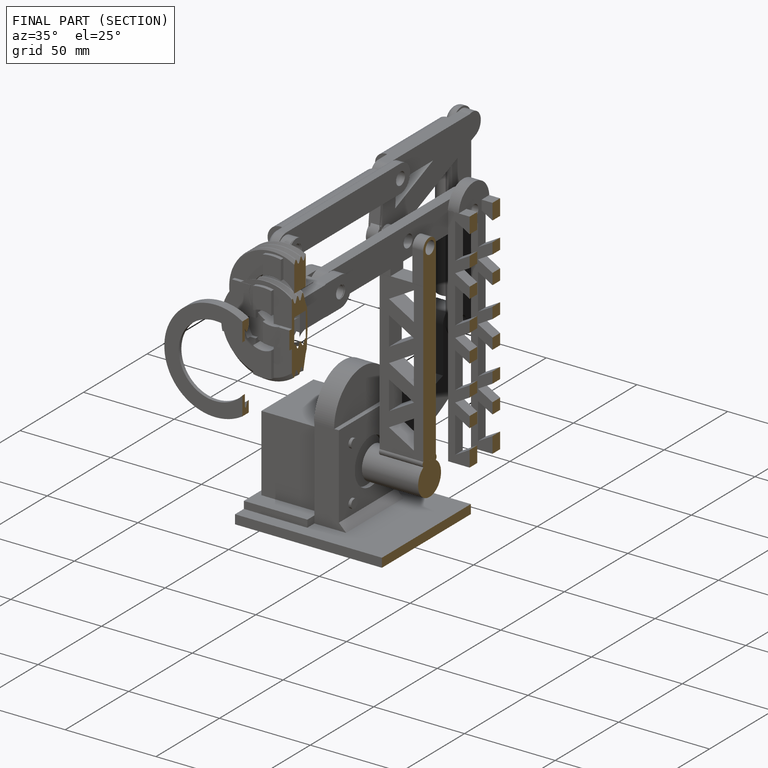
[diagram: finished part — half-section view (interior)]
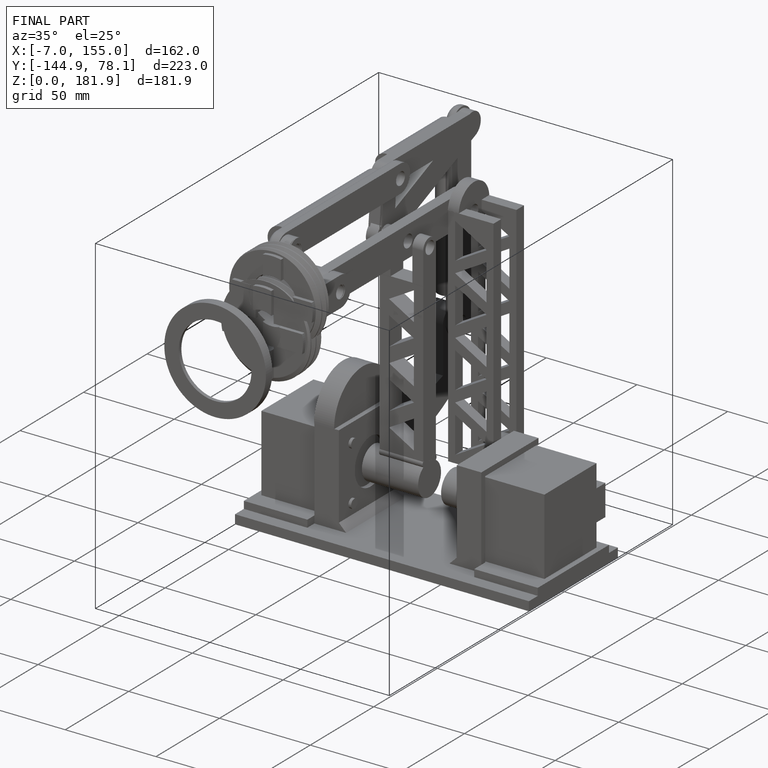
[diagram: finished part — iso view with bounding-box wireframe]
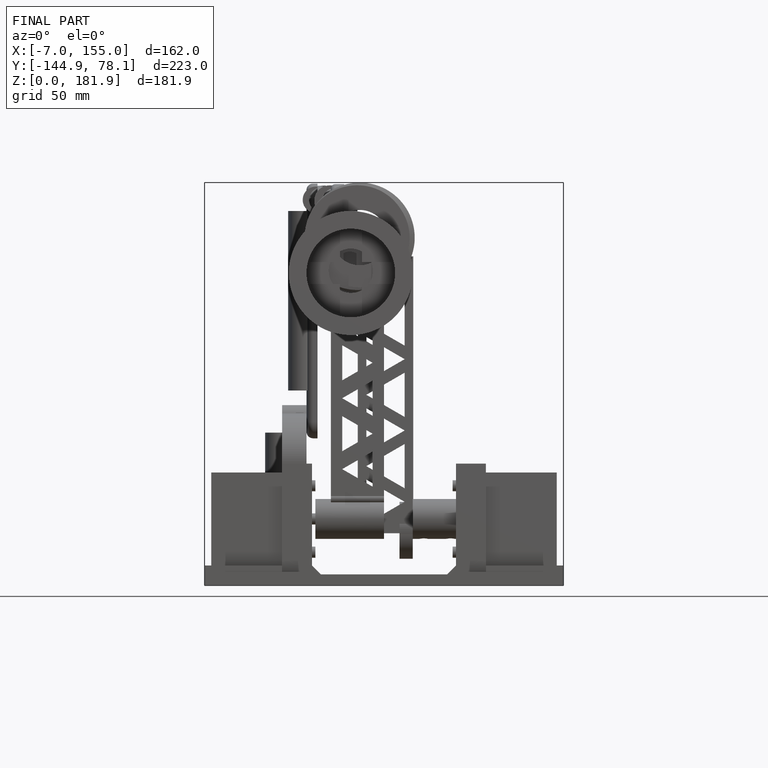
[diagram: finished part — front view with bounding-box wireframe]
